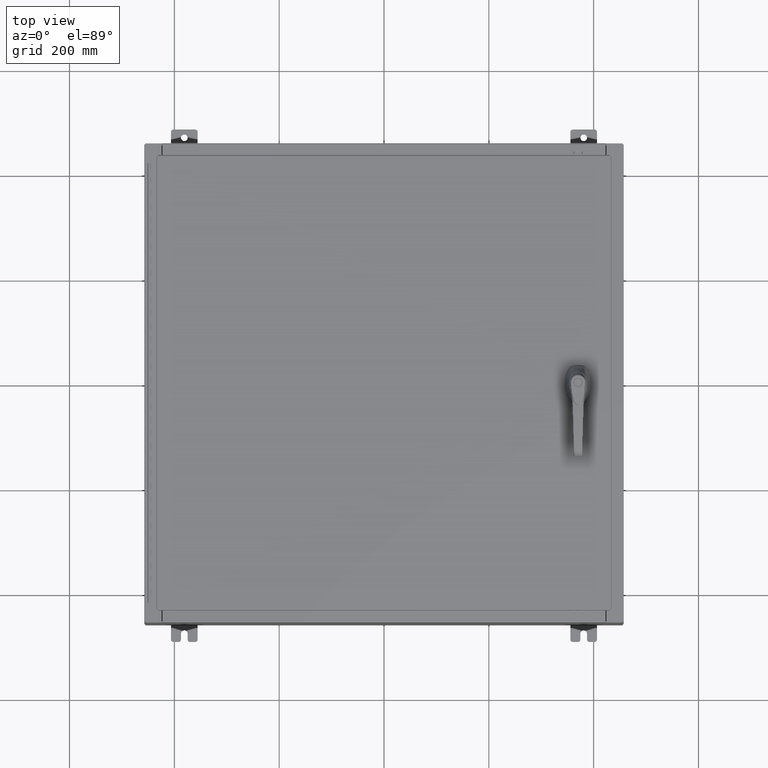
[diagram: clean part render]
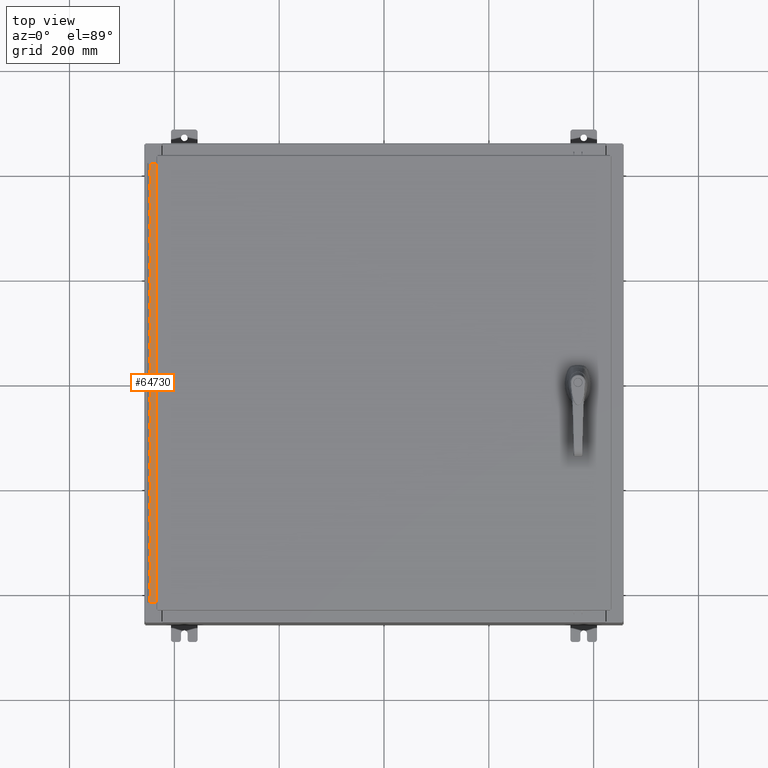
[diagram: same view with one face highlighted and labeled with its STEP entity id]
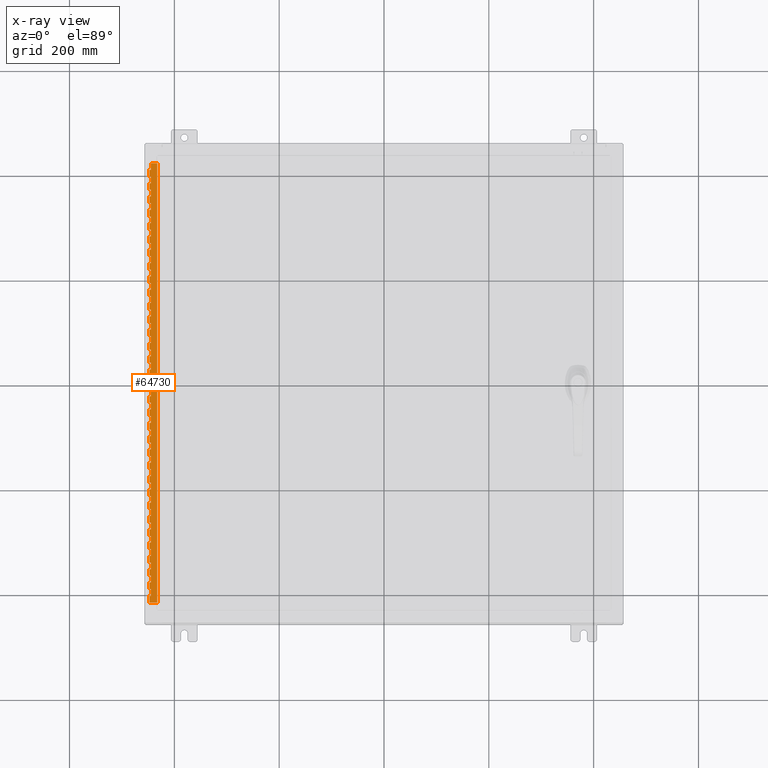
[diagram: x-ray of the same camera — body ghosted, the highlighted face saturated]
A machine part, top view. The second image highlights one B-rep face of the part: STEP entity #64730.
The next image is the same camera in x-ray: the body ghosted, the highlighted face saturated — about 0% of this face is hidden behind the body in this view.
In plain terms, the highlighted planar face has unit normal (-0, -0, 1).
Its self-contained STEP definition (entity closure, byte-faithful):
#3 = ORIENTED_EDGE ( 'NONE', *, *, #54762, .T. ) ;
#103 = CARTESIAN_POINT ( 'NONE',  ( -0.6869999999999973900, 0.8004999999999995500, -32.00000000000000000 ) ) ;
#130 = CARTESIAN_POINT ( 'NONE',  ( -0.6869999999999978300, 0.6754999999999996600, -33.00000000000000000 ) ) ;
#355 = CARTESIAN_POINT ( 'NONE',  ( -0.6869999999999978300, 0.6754999999999996600, -33.00000000000000000 ) ) ;
#525 = VERTEX_POINT ( 'NONE', #117146 ) ;
#683 = DIRECTION ( 'NONE',  ( 0.0000000000000000000, 0.0000000000000000000, 1.000000000000000000 ) ) ;
#758 = DIRECTION ( 'NONE',  ( 0.0000000000000000000, 0.0000000000000000000, 1.000000000000000000 ) ) ;
#987 = LINE ( 'NONE', #76471, #123512 ) ;
#1046 = LINE ( 'NONE', #33039, #32835 ) ;
#1321 = VECTOR ( 'NONE', #62955, 39.37007874015748100 ) ;
#1339 = EDGE_CURVE ( 'NONE', #12669, #89083, #114145, .T. ) ;
#1379 = LINE ( 'NONE', #80050, #7473 ) ;
#1655 = ORIENTED_EDGE ( 'NONE', *, *, #123216, .F. ) ;
#1763 = DIRECTION ( 'NONE',  ( 1.000000000000000000, -3.369016658928398200E-015, 0.0000000000000000000 ) ) ;
#1867 = CARTESIAN_POINT ( 'NONE',  ( -0.6869999999999982800, 0.5504999999999997700, -19.00000000000000000 ) ) ;
#1903 = ORIENTED_EDGE ( 'NONE', *, *, #77386, .F. ) ;
#1916 = LINE ( 'NONE', #76165, #79079 ) ;
#1966 = VECTOR ( 'NONE', #79378, 39.37007874015748100 ) ;
#1967 = CARTESIAN_POINT ( 'NONE',  ( -0.6869999999999982800, 0.5504999999999997700, -28.99999999999999600 ) ) ;
#2019 = DIRECTION ( 'NONE',  ( -3.389037039080723100E-015, -1.000000000000000000, 0.0000000000000000000 ) ) ;
#2118 = DIRECTION ( 'NONE',  ( 0.0000000000000000000, 0.0000000000000000000, 1.000000000000000000 ) ) ;
#2146 = VERTEX_POINT ( 'NONE', #112023 ) ;
#2187 = CARTESIAN_POINT ( 'NONE',  ( -0.6869999999999982800, 0.5504999999999997700, -7.499999999999999100 ) ) ;
#2335 = DIRECTION ( 'NONE',  ( 3.389037039080723100E-015, 1.000000000000000000, -0.0000000000000000000 ) ) ;
#2355 = CARTESIAN_POINT ( 'NONE',  ( -0.6870000000000022800, -0.6245000000000003900, 0.0000000000000000000 ) ) ;
#2371 = VERTEX_POINT ( 'NONE', #77314 ) ;
#2502 = EDGE_CURVE ( 'NONE', #113774, #18291, #109453, .T. ) ;
#2646 = VERTEX_POINT ( 'NONE', #61644 ) ;
#2723 = ORIENTED_EDGE ( 'NONE', *, *, #109761, .F. ) ;
#2818 = LINE ( 'NONE', #124147, #102661 ) ;
#2842 = EDGE_CURVE ( 'NONE', #55015, #29127, #39803, .T. ) ;
#2883 = EDGE_CURVE ( 'NONE', #40118, #76001, #116923, .T. ) ;
#2974 = VECTOR ( 'NONE', #81045, 39.37007874015748100 ) ;
#3080 = ORIENTED_EDGE ( 'NONE', *, *, #92057, .F. ) ;
#3416 = EDGE_CURVE ( 'NONE', #38864, #46408, #86581, .T. ) ;
#3553 = CARTESIAN_POINT ( 'NONE',  ( -0.6869999999999973900, 0.8004999999999995500, -18.50000000000000000 ) ) ;
#3685 = EDGE_CURVE ( 'NONE', #111669, #34989, #113800, .T. ) ;
#3726 = CARTESIAN_POINT ( 'NONE',  ( -0.6869999999999978300, 0.6754999999999996600, -16.00000000000000000 ) ) ;
#3757 = DIRECTION ( 'NONE',  ( 0.0000000000000000000, -0.0000000000000000000, -1.000000000000000000 ) ) ;
#3835 = ORIENTED_EDGE ( 'NONE', *, *, #35579, .F. ) ;
#3939 = VECTOR ( 'NONE', #40811, 39.37007874015748100 ) ;
#4747 = LINE ( 'NONE', #119271, #27362 ) ;
#4815 = ORIENTED_EDGE ( 'NONE', *, *, #72247, .F. ) ;
#4825 = CARTESIAN_POINT ( 'NONE',  ( -0.6869999999999978300, 0.6754999999999996600, -20.00000000000000000 ) ) ;
#4853 = CARTESIAN_POINT ( 'NONE',  ( -0.6869999999999982800, 0.5504999999999997700, -24.50000000000000000 ) ) ;
#5200 = ORIENTED_EDGE ( 'NONE', *, *, #107678, .F. ) ;
#5400 = LINE ( 'NONE', #21488, #102192 ) ;
#5431 = CARTESIAN_POINT ( 'NONE',  ( -0.6869999999999978300, 0.6754999999999996600, -23.00000000000000000 ) ) ;
#5457 = VECTOR ( 'NONE', #76284, 39.37007874015748100 ) ;
#5468 = VECTOR ( 'NONE', #71966, 39.37007874015748100 ) ;
#5519 = ORIENTED_EDGE ( 'NONE', *, *, #72167, .F. ) ;
#5620 = DIRECTION ( 'NONE',  ( 3.389037039080723100E-015, 1.000000000000000000, -0.0000000000000000000 ) ) ;
#5687 = EDGE_CURVE ( 'NONE', #40705, #69214, #98327, .T. ) ;
#5872 = CARTESIAN_POINT ( 'NONE',  ( -0.6869999999999982800, 0.5504999999999997700, -23.99999999999999600 ) ) ;
#5945 = ORIENTED_EDGE ( 'NONE', *, *, #92264, .T. ) ;
#5979 = EDGE_CURVE ( 'NONE', #59048, #89083, #77139, .T. ) ;
#6102 = DIRECTION ( 'NONE',  ( 3.389037039080723100E-015, 1.000000000000000000, -0.0000000000000000000 ) ) ;
#6153 = ORIENTED_EDGE ( 'NONE', *, *, #21067, .F. ) ;
#6162 = DIRECTION ( 'NONE',  ( -3.389037039080723100E-015, -1.000000000000000000, 0.0000000000000000000 ) ) ;
#6244 = VECTOR ( 'NONE', #80711, 39.37007874015748100 ) ;
#6296 = VECTOR ( 'NONE', #103520, 39.37007874015748100 ) ;
#6341 = DIRECTION ( 'NONE',  ( 0.0000000000000000000, -0.0000000000000000000, -1.000000000000000000 ) ) ;
#6535 = EDGE_CURVE ( 'NONE', #56065, #42460, #69502, .T. ) ;
#6679 = VERTEX_POINT ( 'NONE', #23116 ) ;
#6778 = DIRECTION ( 'NONE',  ( 3.389037039080723100E-015, 1.000000000000000000, -0.0000000000000000000 ) ) ;
#7013 = CARTESIAN_POINT ( 'NONE',  ( -0.6869999999999978300, 0.6754999999999996600, -33.00000000000000000 ) ) ;
#7180 = VERTEX_POINT ( 'NONE', #40440 ) ;
#7409 = VERTEX_POINT ( 'NONE', #42686 ) ;
#7432 = ORIENTED_EDGE ( 'NONE', *, *, #75648, .F. ) ;
#7473 = VECTOR ( 'NONE', #22096, 39.37007874015748100 ) ;
#7638 = CARTESIAN_POINT ( 'NONE',  ( -0.6869999999999973900, 0.8004999999999995500, -25.50000000000000400 ) ) ;
#8004 = DIRECTION ( 'NONE',  ( 0.0000000000000000000, 0.0000000000000000000, 1.000000000000000000 ) ) ;
#8030 = VERTEX_POINT ( 'NONE', #80603 ) ;
#8043 = LINE ( 'NONE', #69653, #1966 ) ;
#8250 = ORIENTED_EDGE ( 'NONE', *, *, #95412, .F. ) ;
#8605 = DIRECTION ( 'NONE',  ( 3.389037039080723100E-015, 1.000000000000000000, -0.0000000000000000000 ) ) ;
#8682 = ORIENTED_EDGE ( 'NONE', *, *, #59889, .F. ) ;
#8688 = CARTESIAN_POINT ( 'NONE',  ( -0.6869999999999973900, 0.8004999999999995500, -16.00000000000000000 ) ) ;
#8714 = VERTEX_POINT ( 'NONE', #120112 ) ;
#8744 = DIRECTION ( 'NONE',  ( 3.389037039080723100E-015, 1.000000000000000000, -0.0000000000000000000 ) ) ;
#8772 = EDGE_CURVE ( 'NONE', #76984, #102107, #94835, .T. ) ;
#8844 = CARTESIAN_POINT ( 'NONE',  ( -0.6869999999999982800, 0.5504999999999997700, -25.50000000000000400 ) ) ;
#8897 = ORIENTED_EDGE ( 'NONE', *, *, #29101, .T. ) ;
#8916 = DIRECTION ( 'NONE',  ( -3.389037039080723100E-015, -1.000000000000000000, 0.0000000000000000000 ) ) ;
#8945 = LINE ( 'NONE', #56270, #108823 ) ;
#9001 = DIRECTION ( 'NONE',  ( 0.0000000000000000000, 0.0000000000000000000, 1.000000000000000000 ) ) ;
#9057 = VECTOR ( 'NONE', #2019, 39.37007874015748100 ) ;
#9217 = DIRECTION ( 'NONE',  ( -3.389037039080723100E-015, -1.000000000000000000, 0.0000000000000000000 ) ) ;
#9253 = VECTOR ( 'NONE', #74657, 39.37007874015748100 ) ;
#9638 = ORIENTED_EDGE ( 'NONE', *, *, #46727, .F. ) ;
#9666 = LINE ( 'NONE', #87319, #32351 ) ;
#9750 = DIRECTION ( 'NONE',  ( -3.389037039080723100E-015, -1.000000000000000000, 0.0000000000000000000 ) ) ;
#9810 = DIRECTION ( 'NONE',  ( 3.389037039080723100E-015, 1.000000000000000000, -0.0000000000000000000 ) ) ;
#9830 = LINE ( 'NONE', #100570, #26423 ) ;
#9832 = VECTOR ( 'NONE', #70129, 39.37007874015748100 ) ;
#9900 = ORIENTED_EDGE ( 'NONE', *, *, #14376, .F. ) ;
#10055 = EDGE_CURVE ( 'NONE', #119854, #48598, #41756, .T. ) ;
#10351 = VERTEX_POINT ( 'NONE', #20004 ) ;
#10431 = EDGE_CURVE ( 'NONE', #38864, #42168, #43197, .T. ) ;
#10446 = CARTESIAN_POINT ( 'NONE',  ( -0.6869999999999978300, 0.6754999999999996600, -7.499999999999999100 ) ) ;
#10679 = CARTESIAN_POINT ( 'NONE',  ( -0.6869999999999982800, 0.5504999999999997700, -14.00000000000000000 ) ) ;
#10736 = CARTESIAN_POINT ( 'NONE',  ( -0.6869999999999978300, 0.6754999999999996600, -33.00000000000000000 ) ) ;
#10745 = ORIENTED_EDGE ( 'NONE', *, *, #57533, .F. ) ;
#10771 = VECTOR ( 'NONE', #5620, 39.37007874015748100 ) ;
#10869 = ORIENTED_EDGE ( 'NONE', *, *, #33424, .F. ) ;
#11182 = EDGE_CURVE ( 'NONE', #55728, #61438, #9830, .T. ) ;
#11193 = DIRECTION ( 'NONE',  ( 0.0000000000000000000, 0.0000000000000000000, 1.000000000000000000 ) ) ;
#11481 = CARTESIAN_POINT ( 'NONE',  ( -0.6869999999999973900, 0.8004999999999995500, -19.00000000000000000 ) ) ;
#11659 = CARTESIAN_POINT ( 'NONE',  ( -0.6869999999999973900, 0.8004999999999995500, -22.50000000000000000 ) ) ;
#12669 = VERTEX_POINT ( 'NONE', #82620 ) ;
#12854 = LINE ( 'NONE', #45033, #86933 ) ;
#12866 = EDGE_CURVE ( 'NONE', #84500, #102107, #75408, .T. ) ;
#13021 = VERTEX_POINT ( 'NONE', #109993 ) ;
#13164 = ORIENTED_EDGE ( 'NONE', *, *, #2842, .F. ) ;
#13179 = CARTESIAN_POINT ( 'NONE',  ( -0.6869999999999982800, 0.5504999999999997700, -14.49999999999999800 ) ) ;
#13302 = LINE ( 'NONE', #51554, #39017 ) ;
#13537 = VERTEX_POINT ( 'NONE', #5431 ) ;
#13636 = CARTESIAN_POINT ( 'NONE',  ( -0.6869999999999978300, 0.6754999999999996600, -17.50000000000000000 ) ) ;
#13641 = VERTEX_POINT ( 'NONE', #103894 ) ;
#13814 = EDGE_CURVE ( 'NONE', #72203, #7409, #60136, .T. ) ;
#13837 = VECTOR ( 'NONE', #15330, 39.37007874015748100 ) ;
#14042 = DIRECTION ( 'NONE',  ( -3.389037039080723100E-015, -1.000000000000000000, 0.0000000000000000000 ) ) ;
#14139 = VECTOR ( 'NONE', #77660, 39.37007874015748100 ) ;
#14165 = EDGE_CURVE ( 'NONE', #6679, #30947, #116054, .T. ) ;
#14195 = DIRECTION ( 'NONE',  ( 0.0000000000000000000, 0.0000000000000000000, 1.000000000000000000 ) ) ;
#14291 = ORIENTED_EDGE ( 'NONE', *, *, #44853, .F. ) ;
#14376 = EDGE_CURVE ( 'NONE', #70867, #50919, #1046, .T. ) ;
#14395 = CARTESIAN_POINT ( 'NONE',  ( -0.6869999999999973900, 0.8004999999999995500, -28.50000000000000000 ) ) ;
#14518 = CARTESIAN_POINT ( 'NONE',  ( -0.6869999999999982800, 0.5504999999999997700, -24.99999999999999600 ) ) ;
#14619 = VECTOR ( 'NONE', #122386, 39.37007874015748100 ) ;
#14903 = EDGE_CURVE ( 'NONE', #89937, #27805, #47887, .T. ) ;
#15208 = ORIENTED_EDGE ( 'NONE', *, *, #113254, .F. ) ;
#15304 = EDGE_CURVE ( 'NONE', #109428, #121624, #78094, .T. ) ;
#15315 = ORIENTED_EDGE ( 'NONE', *, *, #73964, .F. ) ;
#15330 = DIRECTION ( 'NONE',  ( 3.389037039080723100E-015, 1.000000000000000000, -0.0000000000000000000 ) ) ;
#16570 = VERTEX_POINT ( 'NONE', #20329 ) ;
#16750 = LINE ( 'NONE', #66665, #68200 ) ;
#16781 = DIRECTION ( 'NONE',  ( -3.389037039080723100E-015, -1.000000000000000000, 0.0000000000000000000 ) ) ;
#16840 = DIRECTION ( 'NONE',  ( 3.389037039080723100E-015, 1.000000000000000000, -0.0000000000000000000 ) ) ;
#17156 = DIRECTION ( 'NONE',  ( 3.389037039080723100E-015, 1.000000000000000000, -0.0000000000000000000 ) ) ;
#17192 = CARTESIAN_POINT ( 'NONE',  ( -0.6869999999999978300, 0.6754999999999996600, -2.000000000000000000 ) ) ;
#17203 = VECTOR ( 'NONE', #106753, 39.37007874015748100 ) ;
#17211 = EDGE_CURVE ( 'NONE', #34039, #111669, #33949, .T. ) ;
#17220 = ORIENTED_EDGE ( 'NONE', *, *, #32243, .F. ) ;
#17324 = DIRECTION ( 'NONE',  ( -3.389037039080723100E-015, -1.000000000000000000, 0.0000000000000000000 ) ) ;
#17369 = CARTESIAN_POINT ( 'NONE',  ( -0.6869999999999978300, 0.6754999999999996600, -2.999999999999999600 ) ) ;
#17390 = ORIENTED_EDGE ( 'NONE', *, *, #18363, .F. ) ;
#17595 = EDGE_CURVE ( 'NONE', #125449, #79052, #9666, .T. ) ;
#17616 = EDGE_CURVE ( 'NONE', #92786, #33060, #109550, .T. ) ;
#17682 = VECTOR ( 'NONE', #43628, 39.37007874015748100 ) ;
#18280 = CARTESIAN_POINT ( 'NONE',  ( -0.6869999999999982800, 0.5504999999999997700, -26.00000000000000000 ) ) ;
#18291 = VERTEX_POINT ( 'NONE', #38515 ) ;
#18363 = EDGE_CURVE ( 'NONE', #48598, #29777, #109436, .T. ) ;
#18549 = LINE ( 'NONE', #51903, #66966 ) ;
#18559 = ORIENTED_EDGE ( 'NONE', *, *, #23721, .F. ) ;
#18601 = VERTEX_POINT ( 'NONE', #67125 ) ;
#18621 = EDGE_CURVE ( 'NONE', #49504, #108577, #94195, .T. ) ;
#18738 = VECTOR ( 'NONE', #82001, 39.37007874015748100 ) ;
#18750 = VERTEX_POINT ( 'NONE', #78533 ) ;
#18816 = VECTOR ( 'NONE', #118005, 39.37007874015748100 ) ;
#18824 = ORIENTED_EDGE ( 'NONE', *, *, #48423, .F. ) ;
#18920 = CARTESIAN_POINT ( 'NONE',  ( -0.6869999999999978300, 0.6754999999999996600, -9.500000000000000000 ) ) ;
#18923 = CARTESIAN_POINT ( 'NONE',  ( -0.6869999999999982800, 0.5504999999999997700, -2.000000000000000000 ) ) ;
#19039 = VERTEX_POINT ( 'NONE', #75052 ) ;
#19085 = ORIENTED_EDGE ( 'NONE', *, *, #88821, .T. ) ;
#19446 = CARTESIAN_POINT ( 'NONE',  ( -0.6869999999999998300, 0.07549999999999991400, 0.0000000000000000000 ) ) ;
#19697 = DIRECTION ( 'NONE',  ( -3.389037039080723100E-015, -1.000000000000000000, 0.0000000000000000000 ) ) ;
#19796 = DIRECTION ( 'NONE',  ( 0.0000000000000000000, 0.0000000000000000000, 1.000000000000000000 ) ) ;
#19894 = EDGE_CURVE ( 'NONE', #18601, #30758, #89457, .T. ) ;
#19913 = VERTEX_POINT ( 'NONE', #32115 ) ;
#20004 = CARTESIAN_POINT ( 'NONE',  ( -0.6869999999999978300, 0.6754999999999996600, -26.50000000000000400 ) ) ;
#20224 = ORIENTED_EDGE ( 'NONE', *, *, #71434, .F. ) ;
#20281 = CARTESIAN_POINT ( 'NONE',  ( -0.6869999999999982800, 0.5504999999999997700, -20.50000000000000400 ) ) ;
#20288 = DIRECTION ( 'NONE',  ( 0.0000000000000000000, 0.0000000000000000000, 1.000000000000000000 ) ) ;
#20299 = EDGE_CURVE ( 'NONE', #95625, #16570, #39544, .T. ) ;
#20324 = EDGE_CURVE ( 'NONE', #92553, #72294, #113664, .T. ) ;
#20329 = CARTESIAN_POINT ( 'NONE',  ( -0.6869999999999978300, 0.6754999999999996600, -22.00000000000000000 ) ) ;
#20339 = PLANE ( 'NONE',  #61426 ) ;
#20410 = DIRECTION ( 'NONE',  ( 0.0000000000000000000, 0.0000000000000000000, 1.000000000000000000 ) ) ;
#20450 = ORIENTED_EDGE ( 'NONE', *, *, #27569, .F. ) ;
#20937 = CARTESIAN_POINT ( 'NONE',  ( -0.6869999999999982800, 0.5504999999999997700, -14.99999999999999800 ) ) ;
#21060 = LINE ( 'NONE', #72836, #95173 ) ;
#21067 = EDGE_CURVE ( 'NONE', #94641, #115923, #42458, .T. ) ;
#21131 = DIRECTION ( 'NONE',  ( 3.389037039080723100E-015, 1.000000000000000000, -0.0000000000000000000 ) ) ;
#21271 = VECTOR ( 'NONE', #72907, 39.37007874015748100 ) ;
#21388 = CARTESIAN_POINT ( 'NONE',  ( -0.6869999999999982800, 0.5504999999999997700, -3.500000000000000000 ) ) ;
#21437 = DIRECTION ( 'NONE',  ( -3.389037039080723100E-015, -1.000000000000000000, 0.0000000000000000000 ) ) ;
#21488 = CARTESIAN_POINT ( 'NONE',  ( -0.6869999999999973900, 0.8004999999999995500, -14.99999999999999800 ) ) ;
#21709 = CARTESIAN_POINT ( 'NONE',  ( -0.6869999999999982800, 0.5504999999999997700, -0.5000000000000000000 ) ) ;
#22071 = VERTEX_POINT ( 'NONE', #33596 ) ;
#22096 = DIRECTION ( 'NONE',  ( 3.389037039080723100E-015, 1.000000000000000000, -0.0000000000000000000 ) ) ;
#22232 = CARTESIAN_POINT ( 'NONE',  ( -0.6869999999999998300, 0.07549999999999991400, -33.00000000000000000 ) ) ;
#22364 = DIRECTION ( 'NONE',  ( 3.389037039080723100E-015, 1.000000000000000000, -0.0000000000000000000 ) ) ;
#22371 = ORIENTED_EDGE ( 'NONE', *, *, #34310, .F. ) ;
#22502 = ORIENTED_EDGE ( 'NONE', *, *, #68363, .F. ) ;
#22623 = EDGE_CURVE ( 'NONE', #62551, #120332, #53057, .T. ) ;
#22687 = VERTEX_POINT ( 'NONE', #99375 ) ;
#22749 = VERTEX_POINT ( 'NONE', #13179 ) ;
#22808 = CARTESIAN_POINT ( 'NONE',  ( -0.6869999999999982800, 0.5504999999999997700, -22.50000000000000000 ) ) ;
#22840 = CARTESIAN_POINT ( 'NONE',  ( -0.6869999999999982800, 0.5504999999999997700, -10.00000000000000000 ) ) ;
#23004 = EDGE_CURVE ( 'NONE', #54798, #94501, #987, .T. ) ;
#23116 = CARTESIAN_POINT ( 'NONE',  ( -0.6869999999999978300, 0.6754999999999996600, -15.50000000000000000 ) ) ;
#23272 = CARTESIAN_POINT ( 'NONE',  ( -0.6869999999999978300, 0.6754999999999996600, -33.00000000000000000 ) ) ;
#23403 = CARTESIAN_POINT ( 'NONE',  ( -0.6869999999999982800, 0.5504999999999997700, -20.00000000000000000 ) ) ;
#23615 = VERTEX_POINT ( 'NONE', #29412 ) ;
#23721 = EDGE_CURVE ( 'NONE', #96659, #42324, #29604, .T. ) ;
#23761 = ORIENTED_EDGE ( 'NONE', *, *, #20299, .F. ) ;
#23846 = CARTESIAN_POINT ( 'NONE',  ( -0.6869999999999978300, 0.6754999999999996600, -33.00000000000000000 ) ) ;
#24303 = VERTEX_POINT ( 'NONE', #59278 ) ;
#24374 = CARTESIAN_POINT ( 'NONE',  ( -0.6869999999999982800, 0.5504999999999997700, -7.000000000000000000 ) ) ;
#24505 = ORIENTED_EDGE ( 'NONE', *, *, #102473, .T. ) ;
#24605 = VECTOR ( 'NONE', #98788, 39.37007874015748100 ) ;
#24635 = EDGE_CURVE ( 'NONE', #120085, #64162, #46140, .T. ) ;
#25100 = LINE ( 'NONE', #47099, #73559 ) ;
#25427 = LINE ( 'NONE', #49374, #28444 ) ;
#25430 = VECTOR ( 'NONE', #14195, 39.37007874015748100 ) ;
#25480 = VERTEX_POINT ( 'NONE', #36220 ) ;
#25601 = CARTESIAN_POINT ( 'NONE',  ( -0.6869999999999982800, 0.5504999999999997700, -32.50000000000000000 ) ) ;
#25823 = LINE ( 'NONE', #70618, #74286 ) ;
#25843 = CARTESIAN_POINT ( 'NONE',  ( -0.6869999999999982800, 0.5504999999999997700, -19.50000000000000000 ) ) ;
#26036 = VECTOR ( 'NONE', #43968, 39.37007874015748100 ) ;
#26119 = ORIENTED_EDGE ( 'NONE', *, *, #119951, .T. ) ;
#26157 = EDGE_CURVE ( 'NONE', #115923, #49343, #74645, .T. ) ;
#26338 = CARTESIAN_POINT ( 'NONE',  ( -0.6869999999999978300, 0.6754999999999996600, -32.50000000000000000 ) ) ;
#26423 = VECTOR ( 'NONE', #52428, 39.37007874015748100 ) ;
#26460 = DIRECTION ( 'NONE',  ( 0.0000000000000000000, -0.0000000000000000000, -1.000000000000000000 ) ) ;
#26530 = EDGE_CURVE ( 'NONE', #79052, #78628, #8043, .T. ) ;
#26550 = EDGE_CURVE ( 'NONE', #78326, #13021, #101824, .T. ) ;
#26621 = VECTOR ( 'NONE', #8605, 39.37007874015748100 ) ;
#26677 = EDGE_CURVE ( 'NONE', #7180, #102657, #18549, .T. ) ;
#26791 = VECTOR ( 'NONE', #77481, 39.37007874015748100 ) ;
#26912 = EDGE_LOOP ( 'NONE', ( #55419, #88001, #71391, #63386, #52361, #50819, #5519, #102448, #61283, #98548, #8682, #36228, #100779, #17390, #30410, #33407, #70774, #111178, #35569, #70417, #115909, #17220, #34932, #125020, #104140, #20450, #5200, #43917, #68915, #13164, #53571, #20224, #34368, #3835, #36799, #48381, #72226, #66156, #88391, #50437, #107429, #8250, #78040, #18559, #50487, #23761, #14291, #104705, #42216, #117398, #56940, #80890, #118342, #40363, #15315, #36710, #8897, #60687, #33903, #124164, #26119, #30650, #120099, #40010, #42562, #99152, #37216, #108430, #72868, #2723, #54363, #104846, #42578, #45716, #47172, #42865, #85224, #36384, #18824, #111221, #28045, #115049, #66303, #15208, #24505, #36399, #10745, #37951, #30583, #1903, #107335, #9638, #76258, #115685, #4815, #60133, #67538, #63756, #45402, #72660, #3, #69797, #22502, #85534, #74571, #118463, #77729, #44004, #19085, #98954, #3080, #7432, #5945, #36167, #6153, #64767, #99012, #10869, #54843, #97224, #31702, #9900, #92341, #93666, #75331, #22371, #110446, #45327, #78231, #121603, #1655, #100025, #33600, #116282 ) ) ;
#27024 = CARTESIAN_POINT ( 'NONE',  ( -0.6869999999999982800, 0.5504999999999997700, -2.999999999999999600 ) ) ;
#27224 = EDGE_CURVE ( 'NONE', #112157, #103834, #36695, .T. ) ;
#27362 = VECTOR ( 'NONE', #61388, 39.37007874015748100 ) ;
#27414 = VERTEX_POINT ( 'NONE', #120776 ) ;
#27569 = EDGE_CURVE ( 'NONE', #56432, #30758, #38126, .T. ) ;
#27744 = LINE ( 'NONE', #104776, #124578 ) ;
#27789 = CARTESIAN_POINT ( 'NONE',  ( -0.6869999999999998300, 0.07549999999999991400, -33.00000000000000000 ) ) ;
#27805 = VERTEX_POINT ( 'NONE', #59377 ) ;
#27977 = DIRECTION ( 'NONE',  ( -3.389037039080723100E-015, -1.000000000000000000, 0.0000000000000000000 ) ) ;
#28045 = ORIENTED_EDGE ( 'NONE', *, *, #107248, .T. ) ;
#28059 = LINE ( 'NONE', #10736, #5457 ) ;
#28091 = DIRECTION ( 'NONE',  ( 3.389037039080723100E-015, 1.000000000000000000, -0.0000000000000000000 ) ) ;
#28444 = VECTOR ( 'NONE', #107292, 39.37007874015748100 ) ;
#28891 = VECTOR ( 'NONE', #16840, 39.37007874015748100 ) ;
#29101 = EDGE_CURVE ( 'NONE', #76679, #46044, #59097, .T. ) ;
#29125 = CARTESIAN_POINT ( 'NONE',  ( -0.6869999999999982800, 0.5504999999999997700, -17.50000000000000000 ) ) ;
#29127 = VERTEX_POINT ( 'NONE', #39670 ) ;
#29293 = CARTESIAN_POINT ( 'NONE',  ( -0.6869999999999982800, 0.5504999999999997700, -27.50000000000000000 ) ) ;
#29399 = LINE ( 'NONE', #107742, #83890 ) ;
#29412 = CARTESIAN_POINT ( 'NONE',  ( -0.6869999999999982800, 0.5504999999999997700, -21.00000000000000000 ) ) ;
#29546 = CARTESIAN_POINT ( 'NONE',  ( -0.6869999999999978300, 0.6754999999999996600, -14.00000000000000000 ) ) ;
#29604 = LINE ( 'NONE', #11659, #52346 ) ;
#29608 = EDGE_CURVE ( 'NONE', #18601, #90107, #99855, .T. ) ;
#29777 = VERTEX_POINT ( 'NONE', #56303 ) ;
#30231 = DIRECTION ( 'NONE',  ( 0.0000000000000000000, -0.0000000000000000000, -1.000000000000000000 ) ) ;
#30410 = ORIENTED_EDGE ( 'NONE', *, *, #10055, .F. ) ;
#30498 = CARTESIAN_POINT ( 'NONE',  ( -0.6869999999999982800, 0.5504999999999997700, -0.5000000000000000000 ) ) ;
#30583 = ORIENTED_EDGE ( 'NONE', *, *, #122791, .T. ) ;
#30650 = ORIENTED_EDGE ( 'NONE', *, *, #41406, .F. ) ;
#30758 = VERTEX_POINT ( 'NONE', #101344 ) ;
#30870 = CARTESIAN_POINT ( 'NONE',  ( -0.6869999999999978300, 0.6754999999999996600, -33.00000000000000000 ) ) ;
#30901 = LINE ( 'NONE', #67656, #82369 ) ;
#30947 = VERTEX_POINT ( 'NONE', #103433 ) ;
#31032 = LINE ( 'NONE', #100170, #79471 ) ;
#31129 = DIRECTION ( 'NONE',  ( 0.0000000000000000000, -0.0000000000000000000, -1.000000000000000000 ) ) ;
#31134 = LINE ( 'NONE', #23272, #5468 ) ;
#31507 = DIRECTION ( 'NONE',  ( 3.369016658928398200E-015, 1.000000000000000000, 0.0000000000000000000 ) ) ;
#31529 = EDGE_CURVE ( 'NONE', #83759, #59686, #86154, .T. ) ;
#31576 = CARTESIAN_POINT ( 'NONE',  ( -0.6869999999999978300, 0.6754999999999996600, -30.50000000000000400 ) ) ;
#31632 = EDGE_CURVE ( 'NONE', #113774, #34682, #51399, .T. ) ;
#31702 = ORIENTED_EDGE ( 'NONE', *, *, #120049, .T. ) ;
#31949 = LINE ( 'NONE', #122976, #6296 ) ;
#32115 = CARTESIAN_POINT ( 'NONE',  ( -0.6869999999999978300, 0.6754999999999996600, -18.50000000000000000 ) ) ;
#32243 = EDGE_CURVE ( 'NONE', #8030, #42168, #117828, .T. ) ;
#32351 = VECTOR ( 'NONE', #19697, 39.37007874015748100 ) ;
#32390 = LINE ( 'NONE', #30498, #92913 ) ;
#32835 = VECTOR ( 'NONE', #100664, 39.37007874015748100 ) ;
#33039 = CARTESIAN_POINT ( 'NONE',  ( -0.6869999999999973900, 0.8004999999999995500, -2.999999999999999600 ) ) ;
#33060 = VERTEX_POINT ( 'NONE', #78580 ) ;
#33116 = LINE ( 'NONE', #41445, #81529 ) ;
#33392 = VECTOR ( 'NONE', #124265, 39.37007874015748100 ) ;
#33407 = ORIENTED_EDGE ( 'NONE', *, *, #106648, .F. ) ;
#33424 = EDGE_CURVE ( 'NONE', #34989, #25480, #45099, .T. ) ;
#33596 = CARTESIAN_POINT ( 'NONE',  ( -0.6869999999999978300, 0.6754999999999996600, -11.00000000000000000 ) ) ;
#33600 = ORIENTED_EDGE ( 'NONE', *, *, #110311, .T. ) ;
#33740 = CARTESIAN_POINT ( 'NONE',  ( -0.6869999999999973900, 0.8004999999999995500, -2.000000000000000000 ) ) ;
#33903 = ORIENTED_EDGE ( 'NONE', *, *, #51785, .F. ) ;
#33924 = VECTOR ( 'NONE', #123285, 39.37007874015748100 ) ;
#33949 = LINE ( 'NONE', #35032, #36993 ) ;
#34039 = VERTEX_POINT ( 'NONE', #37571 ) ;
#34124 = VECTOR ( 'NONE', #54559, 39.37007874015748100 ) ;
#34286 = CARTESIAN_POINT ( 'NONE',  ( -0.6869999999999973900, 0.8004999999999995500, -13.50000000000000000 ) ) ;
#34310 = EDGE_CURVE ( 'NONE', #111138, #44235, #99398, .T. ) ;
#34368 = ORIENTED_EDGE ( 'NONE', *, *, #113378, .T. ) ;
#34444 = VECTOR ( 'NONE', #99130, 39.37007874015748100 ) ;
#34562 = EDGE_CURVE ( 'NONE', #34682, #111138, #87252, .T. ) ;
#34682 = VERTEX_POINT ( 'NONE', #64681 ) ;
#34835 = CARTESIAN_POINT ( 'NONE',  ( -0.6869999999999973900, 0.8004999999999995500, -24.99999999999999600 ) ) ;
#34869 = EDGE_CURVE ( 'NONE', #35313, #94641, #60511, .T. ) ;
#34932 = ORIENTED_EDGE ( 'NONE', *, *, #105647, .F. ) ;
#34946 = CARTESIAN_POINT ( 'NONE',  ( -0.6869999999999973900, 0.8004999999999995500, -27.50000000000000000 ) ) ;
#34978 = DIRECTION ( 'NONE',  ( 3.389037039080723100E-015, 1.000000000000000000, -0.0000000000000000000 ) ) ;
#34989 = VERTEX_POINT ( 'NONE', #93230 ) ;
#35032 = CARTESIAN_POINT ( 'NONE',  ( -0.6869999999999973900, 0.8004999999999995500, -3.500000000000000000 ) ) ;
#35313 = VERTEX_POINT ( 'NONE', #42472 ) ;
#35427 = VECTOR ( 'NONE', #683, 39.37007874015748100 ) ;
#35443 = EDGE_CURVE ( 'NONE', #46860, #92015, #55912, .T. ) ;
#35569 = ORIENTED_EDGE ( 'NONE', *, *, #100460, .F. ) ;
#35579 = EDGE_CURVE ( 'NONE', #82422, #22687, #117868, .T. ) ;
#36167 = ORIENTED_EDGE ( 'NONE', *, *, #26157, .F. ) ;
#36186 = DIRECTION ( 'NONE',  ( 0.0000000000000000000, 0.0000000000000000000, 1.000000000000000000 ) ) ;
#36220 = CARTESIAN_POINT ( 'NONE',  ( -0.6869999999999978300, 0.6754999999999996600, -4.000000000000000000 ) ) ;
#36228 = ORIENTED_EDGE ( 'NONE', *, *, #69047, .F. ) ;
#36384 = ORIENTED_EDGE ( 'NONE', *, *, #5979, .F. ) ;
#36399 = ORIENTED_EDGE ( 'NONE', *, *, #20324, .F. ) ;
#36695 = LINE ( 'NONE', #59957, #59342 ) ;
#36709 = VERTEX_POINT ( 'NONE', #31576 ) ;
#36710 = ORIENTED_EDGE ( 'NONE', *, *, #116374, .F. ) ;
#36799 = ORIENTED_EDGE ( 'NONE', *, *, #112074, .F. ) ;
#36936 = DIRECTION ( 'NONE',  ( 0.0000000000000000000, -0.0000000000000000000, -1.000000000000000000 ) ) ;
#36993 = VECTOR ( 'NONE', #73485, 39.37007874015748100 ) ;
#37216 = ORIENTED_EDGE ( 'NONE', *, *, #89283, .F. ) ;
#37571 = CARTESIAN_POINT ( 'NONE',  ( -0.6869999999999978300, 0.6754999999999996600, -3.500000000000000000 ) ) ;
#37826 = LINE ( 'NONE', #63824, #60517 ) ;
#37951 = ORIENTED_EDGE ( 'NONE', *, *, #18621, .F. ) ;
#37980 = LINE ( 'NONE', #42270, #86357 ) ;
#38126 = LINE ( 'NONE', #56878, #63863 ) ;
#38342 = VECTOR ( 'NONE', #54285, 39.37007874015748100 ) ;
#38515 = CARTESIAN_POINT ( 'NONE',  ( -0.6869999999999978300, 0.6754999999999996600, -1.000000000000000000 ) ) ;
#38864 = VERTEX_POINT ( 'NONE', #122349 ) ;
#39007 = CARTESIAN_POINT ( 'NONE',  ( -0.6869999999999978300, 0.6754999999999996600, -14.99999999999999800 ) ) ;
#39017 = VECTOR ( 'NONE', #3757, 39.37007874015748100 ) ;
#39079 = EDGE_CURVE ( 'NONE', #125449, #120332, #31134, .T. ) ;
#39544 = LINE ( 'NONE', #63543, #13837 ) ;
#39584 = LINE ( 'NONE', #102775, #87917 ) ;
#39670 = CARTESIAN_POINT ( 'NONE',  ( -0.6869999999999978300, 0.6754999999999996600, -26.00000000000000000 ) ) ;
#39803 = LINE ( 'NONE', #102593, #91190 ) ;
#40010 = ORIENTED_EDGE ( 'NONE', *, *, #17595, .F. ) ;
#40118 = VERTEX_POINT ( 'NONE', #62396 ) ;
#40214 = CARTESIAN_POINT ( 'NONE',  ( -0.6869999999999973900, 0.8004999999999995500, -12.99999999999999800 ) ) ;
#40363 = ORIENTED_EDGE ( 'NONE', *, *, #70302, .F. ) ;
#40375 = EDGE_CURVE ( 'NONE', #12669, #22749, #12854, .T. ) ;
#40440 = CARTESIAN_POINT ( 'NONE',  ( -0.6869999999999982800, 0.5504999999999997700, -8.000000000000000000 ) ) ;
#40523 = CARTESIAN_POINT ( 'NONE',  ( -0.6869999999999982800, 0.5504999999999997700, -26.50000000000000400 ) ) ;
#40636 = DIRECTION ( 'NONE',  ( 0.0000000000000000000, 0.0000000000000000000, 1.000000000000000000 ) ) ;
#40655 = VERTEX_POINT ( 'NONE', #22840 ) ;
#40705 = VERTEX_POINT ( 'NONE', #110408 ) ;
#40735 = VECTOR ( 'NONE', #54242, 39.37007874015748100 ) ;
#40811 = DIRECTION ( 'NONE',  ( 0.0000000000000000000, 0.0000000000000000000, 1.000000000000000000 ) ) ;
#40997 = LINE ( 'NONE', #104531, #66667 ) ;
#41276 = VECTOR ( 'NONE', #11193, 39.37007874015748100 ) ;
#41406 = EDGE_CURVE ( 'NONE', #78628, #2646, #120062, .T. ) ;
#41445 = CARTESIAN_POINT ( 'NONE',  ( -0.6869999999999982800, 0.5504999999999997700, -2.500000000000000000 ) ) ;
#41756 = LINE ( 'NONE', #93192, #87067 ) ;
#41823 = VERTEX_POINT ( 'NONE', #4825 ) ;
#41924 = EDGE_CURVE ( 'NONE', #23615, #45601, #115477, .T. ) ;
#42168 = VERTEX_POINT ( 'NONE', #106605 ) ;
#42216 = ORIENTED_EDGE ( 'NONE', *, *, #119307, .T. ) ;
#42270 = CARTESIAN_POINT ( 'NONE',  ( -0.6869999999999982800, 0.5504999999999997700, -30.50000000000000400 ) ) ;
#42324 = VERTEX_POINT ( 'NONE', #22808 ) ;
#42458 = LINE ( 'NONE', #64217, #65127 ) ;
#42460 = VERTEX_POINT ( 'NONE', #111630 ) ;
#42472 = CARTESIAN_POINT ( 'NONE',  ( -0.6869999999999978300, 0.6754999999999996600, -4.500000000000000000 ) ) ;
#42562 = ORIENTED_EDGE ( 'NONE', *, *, #39079, .T. ) ;
#42578 = ORIENTED_EDGE ( 'NONE', *, *, #97255, .T. ) ;
#42674 = DIRECTION ( 'NONE',  ( 0.0000000000000000000, -0.0000000000000000000, -1.000000000000000000 ) ) ;
#42686 = CARTESIAN_POINT ( 'NONE',  ( -0.6869999999999982800, 0.5504999999999997700, -7.499999999999999100 ) ) ;
#42814 = CARTESIAN_POINT ( 'NONE',  ( -0.6869999999999982800, 0.5504999999999997700, -28.50000000000000000 ) ) ;
#42865 = ORIENTED_EDGE ( 'NONE', *, *, #40375, .F. ) ;
#42968 = CARTESIAN_POINT ( 'NONE',  ( -0.6869999999999978300, 0.6754999999999996600, -33.00000000000000000 ) ) ;
#43197 = LINE ( 'NONE', #107539, #117279 ) ;
#43391 = CARTESIAN_POINT ( 'NONE',  ( -0.6869999999999978300, 0.6754999999999996600, -22.50000000000000000 ) ) ;
#43489 = CARTESIAN_POINT ( 'NONE',  ( -0.6869999999999982800, 0.5504999999999997700, -15.50000000000000000 ) ) ;
#43564 = LINE ( 'NONE', #105071, #120693 ) ;
#43589 = VERTEX_POINT ( 'NONE', #86361 ) ;
#43628 = DIRECTION ( 'NONE',  ( 0.0000000000000000000, 0.0000000000000000000, 1.000000000000000000 ) ) ;
#43730 = CARTESIAN_POINT ( 'NONE',  ( -0.6869999999999982800, 0.5504999999999997700, -31.00000000000000000 ) ) ;
#43917 = ORIENTED_EDGE ( 'NONE', *, *, #62495, .F. ) ;
#43968 = DIRECTION ( 'NONE',  ( -3.389037039080723100E-015, -1.000000000000000000, 0.0000000000000000000 ) ) ;
#44004 = ORIENTED_EDGE ( 'NONE', *, *, #120602, .F. ) ;
#44198 = CARTESIAN_POINT ( 'NONE',  ( -0.6869999999999978300, 0.6754999999999996600, -33.00000000000000000 ) ) ;
#44235 = VERTEX_POINT ( 'NONE', #17192 ) ;
#44288 = CARTESIAN_POINT ( 'NONE',  ( -0.6869999999999982800, 0.5504999999999997700, -13.50000000000000000 ) ) ;
#44360 = DIRECTION ( 'NONE',  ( 0.0000000000000000000, 0.0000000000000000000, 1.000000000000000000 ) ) ;
#44853 = EDGE_CURVE ( 'NONE', #61438, #95625, #59067, .T. ) ;
#44905 = EDGE_CURVE ( 'NONE', #102147, #55015, #107493, .T. ) ;
#44921 = VECTOR ( 'NONE', #61935, 39.37007874015748100 ) ;
#45033 = CARTESIAN_POINT ( 'NONE',  ( -0.6869999999999973900, 0.8004999999999995500, -14.49999999999999800 ) ) ;
#45039 = CARTESIAN_POINT ( 'NONE',  ( -0.6869999999999973900, 0.8004999999999995500, -4.000000000000000000 ) ) ;
#45099 = LINE ( 'NONE', #45039, #122229 ) ;
#45252 = VERTEX_POINT ( 'NONE', #3726 ) ;
#45327 = ORIENTED_EDGE ( 'NONE', *, *, #31632, .F. ) ;
#45402 = ORIENTED_EDGE ( 'NONE', *, *, #118163, .F. ) ;
#45601 = VERTEX_POINT ( 'NONE', #94504 ) ;
#45716 = ORIENTED_EDGE ( 'NONE', *, *, #49479, .F. ) ;
#45759 = CARTESIAN_POINT ( 'NONE',  ( -0.6869999999999982800, 0.5504999999999997700, -14.49999999999999800 ) ) ;
#45789 = VECTOR ( 'NONE', #53932, 39.37007874015748100 ) ;
#46044 = VERTEX_POINT ( 'NONE', #84152 ) ;
#46140 = LINE ( 'NONE', #81668, #74876 ) ;
#46283 = LINE ( 'NONE', #46957, #117311 ) ;
#46288 = CARTESIAN_POINT ( 'NONE',  ( -0.6869999999999978300, 0.6754999999999996600, -0.5000000000000000000 ) ) ;
#46398 = VECTOR ( 'NONE', #72772, 39.37007874015748100 ) ;
#46408 = VERTEX_POINT ( 'NONE', #66616 ) ;
#46486 = CARTESIAN_POINT ( 'NONE',  ( -0.6869999999999978300, 0.6754999999999996600, -33.00000000000000000 ) ) ;
#46696 = CARTESIAN_POINT ( 'NONE',  ( -0.6869999999999982800, 0.5504999999999997700, -29.99999999999999600 ) ) ;
#46727 = EDGE_CURVE ( 'NONE', #92786, #525, #122047, .T. ) ;
#46860 = VERTEX_POINT ( 'NONE', #43730 ) ;
#46950 = VECTOR ( 'NONE', #16781, 39.37007874015748100 ) ;
#46957 = CARTESIAN_POINT ( 'NONE',  ( -0.6869999999999973900, 0.8004999999999995500, -9.500000000000000000 ) ) ;
#46958 = VECTOR ( 'NONE', #69823, 39.37007874015748100 ) ;
#47096 = LINE ( 'NONE', #124746, #121207 ) ;
#47099 = CARTESIAN_POINT ( 'NONE',  ( -0.6869999999999973900, 0.8004999999999995500, -7.000000000000000000 ) ) ;
#47172 = ORIENTED_EDGE ( 'NONE', *, *, #59349, .F. ) ;
#47219 = VECTOR ( 'NONE', #36186, 39.37007874015748100 ) ;
#47319 = VECTOR ( 'NONE', #77586, 39.37007874015748100 ) ;
#47656 = CARTESIAN_POINT ( 'NONE',  ( -0.6869999999999978300, 0.6754999999999996600, -6.499999999999999100 ) ) ;
#47887 = LINE ( 'NONE', #69511, #67515 ) ;
#48151 = CARTESIAN_POINT ( 'NONE',  ( -0.6869999999999978300, 0.6754999999999996600, -33.00000000000000000 ) ) ;
#48338 = LINE ( 'NONE', #93916, #93661 ) ;
#48381 = ORIENTED_EDGE ( 'NONE', *, *, #24635, .F. ) ;
#48423 = EDGE_CURVE ( 'NONE', #68903, #59048, #97765, .T. ) ;
#48598 = VERTEX_POINT ( 'NONE', #46696 ) ;
#48631 = EDGE_CURVE ( 'NONE', #56094, #18750, #25100, .T. ) ;
#48647 = VERTEX_POINT ( 'NONE', #66528 ) ;
#48723 = VECTOR ( 'NONE', #40636, 39.37007874015748100 ) ;
#48894 = CARTESIAN_POINT ( 'NONE',  ( -0.6869999999999978300, 0.6754999999999996600, -33.00000000000000000 ) ) ;
#48929 = DIRECTION ( 'NONE',  ( 0.0000000000000000000, -0.0000000000000000000, -1.000000000000000000 ) ) ;
#49187 = EDGE_CURVE ( 'NONE', #114359, #13641, #46283, .T. ) ;
#49343 = VERTEX_POINT ( 'NONE', #115420 ) ;
#49374 = CARTESIAN_POINT ( 'NONE',  ( -0.6869999999999978300, 0.6754999999999996600, -33.00000000000000000 ) ) ;
#49418 = LINE ( 'NONE', #34286, #46398 ) ;
#49479 = EDGE_CURVE ( 'NONE', #124659, #123103, #5400, .T. ) ;
#49504 = VERTEX_POINT ( 'NONE', #50697 ) ;
#49672 = VERTEX_POINT ( 'NONE', #100550 ) ;
#50294 = EDGE_CURVE ( 'NONE', #56065, #45252, #59711, .T. ) ;
#50437 = ORIENTED_EDGE ( 'NONE', *, *, #23004, .F. ) ;
#50487 = ORIENTED_EDGE ( 'NONE', *, *, #116618, .T. ) ;
#50680 = VECTOR ( 'NONE', #17324, 39.37007874015748100 ) ;
#50697 = CARTESIAN_POINT ( 'NONE',  ( -0.6869999999999978300, 0.6754999999999996600, -11.50000000000000000 ) ) ;
#50819 = ORIENTED_EDGE ( 'NONE', *, *, #12866, .F. ) ;
#50919 = VERTEX_POINT ( 'NONE', #17369 ) ;
#51029 = DIRECTION ( 'NONE',  ( 0.0000000000000000000, 0.0000000000000000000, 1.000000000000000000 ) ) ;
#51147 = DIRECTION ( 'NONE',  ( 0.0000000000000000000, -0.0000000000000000000, -1.000000000000000000 ) ) ;
#51399 = LINE ( 'NONE', #102135, #2974 ) ;
#51554 = CARTESIAN_POINT ( 'NONE',  ( -0.6869999999999982800, 0.5504999999999997700, -11.50000000000000000 ) ) ;
#51785 = EDGE_CURVE ( 'NONE', #117472, #94205, #88197, .T. ) ;
#51879 = DIRECTION ( 'NONE',  ( 0.0000000000000000000, 0.0000000000000000000, 1.000000000000000000 ) ) ;
#51903 = CARTESIAN_POINT ( 'NONE',  ( -0.6869999999999973900, 0.8004999999999995500, -8.000000000000000000 ) ) ;
#52188 = CARTESIAN_POINT ( 'NONE',  ( -0.6869999999999982800, 0.5504999999999997700, -5.500000000000000000 ) ) ;
#52224 = CARTESIAN_POINT ( 'NONE',  ( -0.6869999999999973900, 0.8004999999999995500, -10.50000000000000000 ) ) ;
#52346 = VECTOR ( 'NONE', #98697, 39.37007874015748100 ) ;
#52361 = ORIENTED_EDGE ( 'NONE', *, *, #8772, .T. ) ;
#52420 = CARTESIAN_POINT ( 'NONE',  ( -0.6869999999999982800, 0.5504999999999997700, -12.49999999999999800 ) ) ;
#52428 = DIRECTION ( 'NONE',  ( -3.389037039080723100E-015, -1.000000000000000000, 0.0000000000000000000 ) ) ;
#52701 = VECTOR ( 'NONE', #113163, 39.37007874015748100 ) ;
#52764 = CARTESIAN_POINT ( 'NONE',  ( -0.6869999999999982800, 0.5504999999999997700, -18.50000000000000000 ) ) ;
#53043 = CARTESIAN_POINT ( 'NONE',  ( -0.6869999999999982800, 0.5504999999999997700, -29.50000000000000000 ) ) ;
#53057 = LINE ( 'NONE', #79548, #46958 ) ;
#53403 = VERTEX_POINT ( 'NONE', #63766 ) ;
#53571 = ORIENTED_EDGE ( 'NONE', *, *, #44905, .F. ) ;
#53632 = VECTOR ( 'NONE', #78496, 39.37007874015748100 ) ;
#53932 = DIRECTION ( 'NONE',  ( 0.0000000000000000000, 0.0000000000000000000, 1.000000000000000000 ) ) ;
#54228 = EDGE_CURVE ( 'NONE', #30947, #2146, #90878, .T. ) ;
#54242 = DIRECTION ( 'NONE',  ( 3.389037039080723100E-015, 1.000000000000000000, -0.0000000000000000000 ) ) ;
#54285 = DIRECTION ( 'NONE',  ( 3.389037039080723100E-015, 1.000000000000000000, -0.0000000000000000000 ) ) ;
#54363 = ORIENTED_EDGE ( 'NONE', *, *, #54228, .F. ) ;
#54559 = DIRECTION ( 'NONE',  ( 0.0000000000000000000, -0.0000000000000000000, -1.000000000000000000 ) ) ;
#54762 = EDGE_CURVE ( 'NONE', #8714, #102657, #63642, .T. ) ;
#54798 = VERTEX_POINT ( 'NONE', #82650 ) ;
#54802 = DIRECTION ( 'NONE',  ( 0.0000000000000000000, -0.0000000000000000000, -1.000000000000000000 ) ) ;
#54824 = CARTESIAN_POINT ( 'NONE',  ( -0.6869999999999978300, 0.6754999999999996600, -33.00000000000000000 ) ) ;
#54843 = ORIENTED_EDGE ( 'NONE', *, *, #3685, .F. ) ;
#55015 = VERTEX_POINT ( 'NONE', #18280 ) ;
#55107 = DIRECTION ( 'NONE',  ( 0.0000000000000000000, 0.0000000000000000000, 1.000000000000000000 ) ) ;
#55419 = ORIENTED_EDGE ( 'NONE', *, *, #31529, .F. ) ;
#55471 = DIRECTION ( 'NONE',  ( 0.0000000000000000000, -0.0000000000000000000, -1.000000000000000000 ) ) ;
#55589 = VECTOR ( 'NONE', #71221, 39.37007874015748100 ) ;
#55664 = CARTESIAN_POINT ( 'NONE',  ( -0.6869999999999973900, 0.8004999999999995500, -30.50000000000000400 ) ) ;
#55672 = VECTOR ( 'NONE', #61004, 39.37007874015748100 ) ;
#55728 = VERTEX_POINT ( 'NONE', #125097 ) ;
#55912 = LINE ( 'NONE', #81778, #98188 ) ;
#56047 = VECTOR ( 'NONE', #76494, 39.37007874015748100 ) ;
#56065 = VERTEX_POINT ( 'NONE', #110702 ) ;
#56082 = VECTOR ( 'NONE', #758, 39.37007874015748100 ) ;
#56094 = VERTEX_POINT ( 'NONE', #24374 ) ;
#56270 = CARTESIAN_POINT ( 'NONE',  ( -0.6869999999999973900, 0.8004999999999995500, -29.50000000000000000 ) ) ;
#56303 = CARTESIAN_POINT ( 'NONE',  ( -0.6869999999999978300, 0.6754999999999996600, -29.99999999999999600 ) ) ;
#56432 = VERTEX_POINT ( 'NONE', #69601 ) ;
#56566 = DIRECTION ( 'NONE',  ( 0.0000000000000000000, -0.0000000000000000000, -1.000000000000000000 ) ) ;
#56606 = LINE ( 'NONE', #59042, #53632 ) ;
#56878 = CARTESIAN_POINT ( 'NONE',  ( -0.6869999999999973900, 0.8004999999999995500, -27.00000000000000000 ) ) ;
#56940 = ORIENTED_EDGE ( 'NONE', *, *, #104339, .F. ) ;
#57187 = CARTESIAN_POINT ( 'NONE',  ( -0.6869999999999973900, 0.8004999999999995500, -15.50000000000000000 ) ) ;
#57398 = VECTOR ( 'NONE', #61904, 39.37007874015748100 ) ;
#57420 = DIRECTION ( 'NONE',  ( -3.389037039080723100E-015, -1.000000000000000000, 0.0000000000000000000 ) ) ;
#57533 = EDGE_CURVE ( 'NONE', #108577, #92553, #13302, .T. ) ;
#57624 = VECTOR ( 'NONE', #20288, 39.37007874015748100 ) ;
#57694 = VECTOR ( 'NONE', #2118, 39.37007874015748100 ) ;
#57742 = VERTEX_POINT ( 'NONE', #5872 ) ;
#57947 = VECTOR ( 'NONE', #97206, 39.37007874015748100 ) ;
#57979 = VECTOR ( 'NONE', #119462, 39.37007874015748100 ) ;
#58165 = CARTESIAN_POINT ( 'NONE',  ( -0.6869999999999982800, 0.5504999999999997700, -17.00000000000000000 ) ) ;
#58296 = CARTESIAN_POINT ( 'NONE',  ( -0.6869999999999978300, 0.6754999999999996600, -9.000000000000000000 ) ) ;
#58761 = CARTESIAN_POINT ( 'NONE',  ( -0.6869999999999973900, 0.8004999999999995500, -29.99999999999999600 ) ) ;
#59042 = CARTESIAN_POINT ( 'NONE',  ( -0.6869999999999982800, 0.5504999999999997700, -9.500000000000000000 ) ) ;
#59048 = VERTEX_POINT ( 'NONE', #10679 ) ;
#59067 = LINE ( 'NONE', #61260, #33392 ) ;
#59097 = LINE ( 'NONE', #355, #56082 ) ;
#59278 = CARTESIAN_POINT ( 'NONE',  ( -0.6869999999999978300, 0.6754999999999996600, -23.99999999999999600 ) ) ;
#59342 = VECTOR ( 'NONE', #79403, 39.37007874015748100 ) ;
#59349 = EDGE_CURVE ( 'NONE', #22749, #124659, #100079, .T. ) ;
#59377 = CARTESIAN_POINT ( 'NONE',  ( -0.6869999999999978300, 0.6754999999999996600, -6.000000000000000900 ) ) ;
#59407 = VECTOR ( 'NONE', #9217, 39.37007874015748100 ) ;
#59645 = LINE ( 'NONE', #97063, #82365 ) ;
#59686 = VERTEX_POINT ( 'NONE', #19446 ) ;
#59711 = LINE ( 'NONE', #42968, #82427 ) ;
#59801 = LINE ( 'NONE', #122157, #34124 ) ;
#59889 = EDGE_CURVE ( 'NONE', #88961, #46860, #37980, .T. ) ;
#59957 = CARTESIAN_POINT ( 'NONE',  ( -0.6869999999999973900, 0.8004999999999995500, -20.50000000000000400 ) ) ;
#60133 = ORIENTED_EDGE ( 'NONE', *, *, #49187, .F. ) ;
#60136 = LINE ( 'NONE', #70852, #34444 ) ;
#60176 = EDGE_CURVE ( 'NONE', #57742, #24303, #16750, .T. ) ;
#60272 = CARTESIAN_POINT ( 'NONE',  ( -0.6869999999999973900, 0.8004999999999995500, -14.00000000000000000 ) ) ;
#60401 = CARTESIAN_POINT ( 'NONE',  ( -0.6869999999999973900, 0.8004999999999995500, -32.50000000000000000 ) ) ;
#60511 = LINE ( 'NONE', #108572, #9057 ) ;
#60517 = VECTOR ( 'NONE', #6341, 39.37007874015748100 ) ;
#60597 = CARTESIAN_POINT ( 'NONE',  ( -0.6869999999999982800, 0.5504999999999997700, -5.000000000000000000 ) ) ;
#60687 = ORIENTED_EDGE ( 'NONE', *, *, #123223, .F. ) ;
#60699 = LINE ( 'NONE', #54824, #9253 ) ;
#60701 = VERTEX_POINT ( 'NONE', #1967 ) ;
#60886 = CARTESIAN_POINT ( 'NONE',  ( -0.6869999999999978300, 0.6754999999999996600, -33.00000000000000000 ) ) ;
#61004 = DIRECTION ( 'NONE',  ( 0.0000000000000000000, -0.0000000000000000000, -1.000000000000000000 ) ) ;
#61139 = VECTOR ( 'NONE', #44360, 39.37007874015748100 ) ;
#61260 = CARTESIAN_POINT ( 'NONE',  ( -0.6869999999999982800, 0.5504999999999997700, -21.50000000000000400 ) ) ;
#61283 = ORIENTED_EDGE ( 'NONE', *, *, #93484, .T. ) ;
#61388 = DIRECTION ( 'NONE',  ( -3.389037039080723100E-015, -1.000000000000000000, 0.0000000000000000000 ) ) ;
#61426 = AXIS2_PLACEMENT_3D ( 'NONE', #98105, #1763, #69400 ) ;
#61433 = CARTESIAN_POINT ( 'NONE',  ( -0.6869999999999978300, 0.6754999999999996600, -8.000000000000000000 ) ) ;
#61438 = VERTEX_POINT ( 'NONE', #91781 ) ;
#61465 = CARTESIAN_POINT ( 'NONE',  ( -0.6869999999999978300, 0.6754999999999996600, -31.00000000000000000 ) ) ;
#61594 = CARTESIAN_POINT ( 'NONE',  ( -0.6869999999999978300, 0.6754999999999996600, -32.00000000000000000 ) ) ;
#61613 = DIRECTION ( 'NONE',  ( 3.389037039080723100E-015, 1.000000000000000000, -0.0000000000000000000 ) ) ;
#61644 = CARTESIAN_POINT ( 'NONE',  ( -0.6869999999999978300, 0.6754999999999996600, -17.99999999999999600 ) ) ;
#61874 = CARTESIAN_POINT ( 'NONE',  ( -0.6869999999999982800, 0.5504999999999997700, -32.00000000000000000 ) ) ;
#61904 = DIRECTION ( 'NONE',  ( 0.0000000000000000000, -0.0000000000000000000, -1.000000000000000000 ) ) ;
#61935 = DIRECTION ( 'NONE',  ( -3.389037039080723100E-015, -1.000000000000000000, 0.0000000000000000000 ) ) ;
#62192 = VECTOR ( 'NONE', #111139, 39.37007874015748100 ) ;
#62381 = VECTOR ( 'NONE', #31129, 39.37007874015748100 ) ;
#62396 = CARTESIAN_POINT ( 'NONE',  ( -0.6869999999999982800, 0.5504999999999997700, -32.50000000000000000 ) ) ;
#62495 = EDGE_CURVE ( 'NONE', #10351, #65339, #2818, .T. ) ;
#62551 = VERTEX_POINT ( 'NONE', #58165 ) ;
#62736 = CARTESIAN_POINT ( 'NONE',  ( -0.6869999999999982800, 0.5504999999999997700, -1.000000000000000000 ) ) ;
#62846 = CARTESIAN_POINT ( 'NONE',  ( -0.6869999999999982800, 0.5504999999999997700, -25.50000000000000400 ) ) ;
#62955 = DIRECTION ( 'NONE',  ( 0.0000000000000000000, 0.0000000000000000000, 1.000000000000000000 ) ) ;
#63386 = ORIENTED_EDGE ( 'NONE', *, *, #122318, .F. ) ;
#63522 = DIRECTION ( 'NONE',  ( 3.389037039080723100E-015, 1.000000000000000000, -0.0000000000000000000 ) ) ;
#63543 = CARTESIAN_POINT ( 'NONE',  ( -0.6869999999999973900, 0.8004999999999995500, -22.00000000000000000 ) ) ;
#63642 = LINE ( 'NONE', #23846, #83287 ) ;
#63756 = ORIENTED_EDGE ( 'NONE', *, *, #119416, .F. ) ;
#63766 = CARTESIAN_POINT ( 'NONE',  ( -0.6869999999999982800, 0.5504999999999997700, -11.00000000000000000 ) ) ;
#63824 = CARTESIAN_POINT ( 'NONE',  ( -0.6869999999999982800, 0.5504999999999997700, -27.50000000000000000 ) ) ;
#63863 = VECTOR ( 'NONE', #124517, 39.37007874015748100 ) ;
#64162 = VERTEX_POINT ( 'NONE', #4853 ) ;
#64217 = CARTESIAN_POINT ( 'NONE',  ( -0.6869999999999982800, 0.5504999999999997700, -4.500000000000000000 ) ) ;
#64637 = VECTOR ( 'NONE', #27977, 39.37007874015748100 ) ;
#64681 = CARTESIAN_POINT ( 'NONE',  ( -0.6869999999999982800, 0.5504999999999997700, -1.499999999999999800 ) ) ;
#64730 = ADVANCED_FACE ( 'NONE', ( #87216 ), #20339, .T. ) ;
#64767 = ORIENTED_EDGE ( 'NONE', *, *, #34869, .F. ) ;
#64995 = EDGE_CURVE ( 'NONE', #48647, #68903, #49418, .T. ) ;
#65125 = VERTEX_POINT ( 'NONE', #67143 ) ;
#65127 = VECTOR ( 'NONE', #83660, 39.37007874015748100 ) ;
#65339 = VERTEX_POINT ( 'NONE', #40523 ) ;
#65988 = DIRECTION ( 'NONE',  ( -3.389037039080723100E-015, -1.000000000000000000, 0.0000000000000000000 ) ) ;
#66048 = DIRECTION ( 'NONE',  ( 0.0000000000000000000, 0.0000000000000000000, 1.000000000000000000 ) ) ;
#66050 = DIRECTION ( 'NONE',  ( 0.0000000000000000000, -0.0000000000000000000, -1.000000000000000000 ) ) ;
#66121 = CARTESIAN_POINT ( 'NONE',  ( -0.6869999999999982800, 0.5504999999999997700, -6.000000000000000900 ) ) ;
#66156 = ORIENTED_EDGE ( 'NONE', *, *, #60176, .F. ) ;
#66272 = VECTOR ( 'NONE', #8004, 39.37007874015748100 ) ;
#66303 = ORIENTED_EDGE ( 'NONE', *, *, #124127, .F. ) ;
#66443 = VECTOR ( 'NONE', #6102, 39.37007874015748100 ) ;
#66464 = VECTOR ( 'NONE', #21437, 39.37007874015748100 ) ;
#66528 = CARTESIAN_POINT ( 'NONE',  ( -0.6869999999999978300, 0.6754999999999996600, -13.50000000000000000 ) ) ;
#66616 = CARTESIAN_POINT ( 'NONE',  ( -0.6869999999999982800, 0.5504999999999997700, -28.50000000000000000 ) ) ;
#66665 = CARTESIAN_POINT ( 'NONE',  ( -0.6869999999999973900, 0.8004999999999995500, -23.99999999999999600 ) ) ;
#66667 = VECTOR ( 'NONE', #66050, 39.37007874015748100 ) ;
#66912 = CARTESIAN_POINT ( 'NONE',  ( -0.6869999999999978300, 0.6754999999999996600, -33.00000000000000000 ) ) ;
#66920 = EDGE_CURVE ( 'NONE', #10351, #29127, #106826, .T. ) ;
#66966 = VECTOR ( 'NONE', #61613, 39.37007874015748100 ) ;
#67125 = CARTESIAN_POINT ( 'NONE',  ( -0.6869999999999978300, 0.6754999999999996600, -27.50000000000000000 ) ) ;
#67143 = CARTESIAN_POINT ( 'NONE',  ( -0.6869999999999982800, 0.5504999999999997700, -8.500000000000000000 ) ) ;
#67424 = CARTESIAN_POINT ( 'NONE',  ( -0.6869999999999982800, 0.5504999999999997700, -31.50000000000000400 ) ) ;
#67515 = VECTOR ( 'NONE', #87676, 39.37007874015748100 ) ;
#67538 = ORIENTED_EDGE ( 'NONE', *, *, #125030, .T. ) ;
#67656 = CARTESIAN_POINT ( 'NONE',  ( -0.6869999999999973900, 0.8004999999999995500, -0.5000000000000000000 ) ) ;
#68200 = VECTOR ( 'NONE', #8744, 39.37007874015748100 ) ;
#68363 = EDGE_CURVE ( 'NONE', #7409, #7180, #95951, .T. ) ;
#68449 = VECTOR ( 'NONE', #90457, 39.37007874015748100 ) ;
#68679 = EDGE_CURVE ( 'NONE', #120085, #24303, #29399, .T. ) ;
#68903 = VERTEX_POINT ( 'NONE', #44288 ) ;
#68915 = ORIENTED_EDGE ( 'NONE', *, *, #66920, .T. ) ;
#69047 = EDGE_CURVE ( 'NONE', #36709, #88961, #114102, .T. ) ;
#69111 = CARTESIAN_POINT ( 'NONE',  ( -0.6869999999999978300, 0.6754999999999996600, -33.00000000000000000 ) ) ;
#69214 = VERTEX_POINT ( 'NONE', #67424 ) ;
#69400 = DIRECTION ( 'NONE',  ( 3.369016658928398200E-015, 1.000000000000000000, 0.0000000000000000000 ) ) ;
#69502 = LINE ( 'NONE', #79401, #66464 ) ;
#69511 = CARTESIAN_POINT ( 'NONE',  ( -0.6869999999999973900, 0.8004999999999995500, -6.000000000000000900 ) ) ;
#69525 = CARTESIAN_POINT ( 'NONE',  ( -0.6869999999999978300, 0.6754999999999996600, -33.00000000000000000 ) ) ;
#69601 = CARTESIAN_POINT ( 'NONE',  ( -0.6869999999999982800, 0.5504999999999997700, -27.00000000000000000 ) ) ;
#69653 = CARTESIAN_POINT ( 'NONE',  ( -0.6869999999999982800, 0.5504999999999997700, -17.50000000000000000 ) ) ;
#69797 = ORIENTED_EDGE ( 'NONE', *, *, #26677, .F. ) ;
#69823 = DIRECTION ( 'NONE',  ( 3.389037039080723100E-015, 1.000000000000000000, -0.0000000000000000000 ) ) ;
#70129 = DIRECTION ( 'NONE',  ( -3.389037039080723100E-015, -1.000000000000000000, 0.0000000000000000000 ) ) ;
#70205 = VERTEX_POINT ( 'NONE', #46288 ) ;
#70302 = EDGE_CURVE ( 'NONE', #76454, #41823, #75053, .T. ) ;
#70417 = ORIENTED_EDGE ( 'NONE', *, *, #3416, .F. ) ;
#70618 = CARTESIAN_POINT ( 'NONE',  ( -0.6869999999999973900, 0.8004999999999995500, -1.000000000000000000 ) ) ;
#70774 = ORIENTED_EDGE ( 'NONE', *, *, #115540, .T. ) ;
#70852 = CARTESIAN_POINT ( 'NONE',  ( -0.6869999999999973900, 0.8004999999999995500, -7.499999999999999100 ) ) ;
#70867 = VERTEX_POINT ( 'NONE', #27024 ) ;
#70990 = CARTESIAN_POINT ( 'NONE',  ( -0.6869999999999982800, 0.5504999999999997700, -16.50000000000000000 ) ) ;
#71221 = DIRECTION ( 'NONE',  ( -3.389037039080723100E-015, -1.000000000000000000, 0.0000000000000000000 ) ) ;
#71391 = ORIENTED_EDGE ( 'NONE', *, *, #2883, .F. ) ;
#71434 = EDGE_CURVE ( 'NONE', #85215, #102147, #102121, .T. ) ;
#71737 = LINE ( 'NONE', #118921, #94338 ) ;
#71966 = DIRECTION ( 'NONE',  ( 0.0000000000000000000, 0.0000000000000000000, 1.000000000000000000 ) ) ;
#72092 = VECTOR ( 'NONE', #28091, 39.37007874015748100 ) ;
#72167 = EDGE_CURVE ( 'NONE', #69214, #84500, #59645, .T. ) ;
#72203 = VERTEX_POINT ( 'NONE', #10446 ) ;
#72226 = ORIENTED_EDGE ( 'NONE', *, *, #68679, .T. ) ;
#72247 = EDGE_CURVE ( 'NONE', #13641, #40655, #56606, .T. ) ;
#72294 = VERTEX_POINT ( 'NONE', #118202 ) ;
#72425 = VECTOR ( 'NONE', #9810, 39.37007874015748100 ) ;
#72660 = ORIENTED_EDGE ( 'NONE', *, *, #115071, .F. ) ;
#72772 = DIRECTION ( 'NONE',  ( -3.389037039080723100E-015, -1.000000000000000000, 0.0000000000000000000 ) ) ;
#72836 = CARTESIAN_POINT ( 'NONE',  ( -0.6869999999999973900, 0.8004999999999995500, -11.00000000000000000 ) ) ;
#72868 = ORIENTED_EDGE ( 'NONE', *, *, #50294, .T. ) ;
#72907 = DIRECTION ( 'NONE',  ( 0.0000000000000000000, 0.0000000000000000000, 1.000000000000000000 ) ) ;
#73228 = VERTEX_POINT ( 'NONE', #99274 ) ;
#73253 = CARTESIAN_POINT ( 'NONE',  ( -0.6869999999999982800, 0.5504999999999997700, -20.50000000000000400 ) ) ;
#73485 = DIRECTION ( 'NONE',  ( -3.389037039080723100E-015, -1.000000000000000000, 0.0000000000000000000 ) ) ;
#73559 = VECTOR ( 'NONE', #114743, 39.37007874015748100 ) ;
#73656 = VECTOR ( 'NONE', #80271, 39.37007874015748100 ) ;
#73715 = VECTOR ( 'NONE', #120788, 39.37007874015748100 ) ;
#73758 = CARTESIAN_POINT ( 'NONE',  ( -0.6869999999999978300, 0.6754999999999996600, -33.00000000000000000 ) ) ;
#73798 = VERTEX_POINT ( 'NONE', #62736 ) ;
#73825 = DIRECTION ( 'NONE',  ( -3.389037039080723100E-015, -1.000000000000000000, 0.0000000000000000000 ) ) ;
#73880 = LINE ( 'NONE', #107709, #122266 ) ;
#73964 = EDGE_CURVE ( 'NONE', #90757, #76454, #1916, .T. ) ;
#74286 = VECTOR ( 'NONE', #22364, 39.37007874015748100 ) ;
#74571 = ORIENTED_EDGE ( 'NONE', *, *, #107630, .T. ) ;
#74645 = LINE ( 'NONE', #102725, #97281 ) ;
#74657 = DIRECTION ( 'NONE',  ( 0.0000000000000000000, 0.0000000000000000000, 1.000000000000000000 ) ) ;
#74718 = CARTESIAN_POINT ( 'NONE',  ( -0.6869999999999973900, 0.8004999999999995500, -31.50000000000000400 ) ) ;
#74865 = LINE ( 'NONE', #97426, #97504 ) ;
#74876 = VECTOR ( 'NONE', #14042, 39.37007874015748100 ) ;
#75052 = CARTESIAN_POINT ( 'NONE',  ( -0.6869999999999982800, 0.5504999999999997700, -9.000000000000000000 ) ) ;
#75053 = LINE ( 'NONE', #76249, #26621 ) ;
#75302 = CARTESIAN_POINT ( 'NONE',  ( -0.6869999999999982800, 0.5504999999999997700, -23.00000000000000000 ) ) ;
#75331 = ORIENTED_EDGE ( 'NONE', *, *, #95399, .T. ) ;
#75408 = LINE ( 'NONE', #103, #72425 ) ;
#75529 = CARTESIAN_POINT ( 'NONE',  ( -0.6869999999999982800, 0.5504999999999997700, -33.00000000000000000 ) ) ;
#75648 = EDGE_CURVE ( 'NONE', #73228, #43589, #4747, .T. ) ;
#75961 = DIRECTION ( 'NONE',  ( -3.389037039080723100E-015, -1.000000000000000000, 0.0000000000000000000 ) ) ;
#76001 = VERTEX_POINT ( 'NONE', #75529 ) ;
#76165 = CARTESIAN_POINT ( 'NONE',  ( -0.6869999999999982800, 0.5504999999999997700, -19.50000000000000000 ) ) ;
#76249 = CARTESIAN_POINT ( 'NONE',  ( -0.6869999999999973900, 0.8004999999999995500, -20.00000000000000000 ) ) ;
#76258 = ORIENTED_EDGE ( 'NONE', *, *, #17616, .T. ) ;
#76284 = DIRECTION ( 'NONE',  ( 0.0000000000000000000, 0.0000000000000000000, 1.000000000000000000 ) ) ;
#76454 = VERTEX_POINT ( 'NONE', #23403 ) ;
#76471 = CARTESIAN_POINT ( 'NONE',  ( -0.6869999999999973900, 0.8004999999999995500, -23.50000000000000000 ) ) ;
#76494 = DIRECTION ( 'NONE',  ( 0.0000000000000000000, -0.0000000000000000000, -1.000000000000000000 ) ) ;
#76669 = LINE ( 'NONE', #91597, #73656 ) ;
#76679 = VERTEX_POINT ( 'NONE', #112223 ) ;
#76896 = LINE ( 'NONE', #73758, #25430 ) ;
#76984 = VERTEX_POINT ( 'NONE', #26338 ) ;
#77139 = LINE ( 'NONE', #60272, #102876 ) ;
#77314 = CARTESIAN_POINT ( 'NONE',  ( -0.6869999999999982800, 0.5504999999999997700, -12.49999999999999800 ) ) ;
#77386 = EDGE_CURVE ( 'NONE', #53403, #22071, #21060, .T. ) ;
#77481 = DIRECTION ( 'NONE',  ( 0.0000000000000000000, 0.0000000000000000000, 1.000000000000000000 ) ) ;
#77576 = CARTESIAN_POINT ( 'NONE',  ( -0.6869999999999973900, 0.8004999999999995500, -17.99999999999999600 ) ) ;
#77586 = DIRECTION ( 'NONE',  ( -3.389037039080723100E-015, -1.000000000000000000, 0.0000000000000000000 ) ) ;
#77660 = DIRECTION ( 'NONE',  ( 0.0000000000000000000, -0.0000000000000000000, -1.000000000000000000 ) ) ;
#77729 = ORIENTED_EDGE ( 'NONE', *, *, #122493, .F. ) ;
#78040 = ORIENTED_EDGE ( 'NONE', *, *, #86418, .F. ) ;
#78094 = LINE ( 'NONE', #40214, #120399 ) ;
#78231 = ORIENTED_EDGE ( 'NONE', *, *, #2502, .T. ) ;
#78258 = LINE ( 'NONE', #130, #26791 ) ;
#78326 = VERTEX_POINT ( 'NONE', #97466 ) ;
#78496 = DIRECTION ( 'NONE',  ( 0.0000000000000000000, -0.0000000000000000000, -1.000000000000000000 ) ) ;
#78533 = CARTESIAN_POINT ( 'NONE',  ( -0.6869999999999978300, 0.6754999999999996600, -7.000000000000000000 ) ) ;
#78580 = CARTESIAN_POINT ( 'NONE',  ( -0.6869999999999978300, 0.6754999999999996600, -10.00000000000000000 ) ) ;
#78598 = EDGE_CURVE ( 'NONE', #54798, #13537, #76896, .T. ) ;
#78628 = VERTEX_POINT ( 'NONE', #81271 ) ;
#78650 = CARTESIAN_POINT ( 'NONE',  ( -0.6869999999999978300, 0.6754999999999996600, -33.00000000000000000 ) ) ;
#79052 = VERTEX_POINT ( 'NONE', #29125 ) ;
#79079 = VECTOR ( 'NONE', #85864, 39.37007874015748100 ) ;
#79086 = CARTESIAN_POINT ( 'NONE',  ( -0.6869999999999982800, 0.5504999999999997700, -4.500000000000000000 ) ) ;
#79125 = DIRECTION ( 'NONE',  ( 3.389037039080723100E-015, 1.000000000000000000, -0.0000000000000000000 ) ) ;
#79378 = DIRECTION ( 'NONE',  ( 0.0000000000000000000, -0.0000000000000000000, -1.000000000000000000 ) ) ;
#79401 = CARTESIAN_POINT ( 'NONE',  ( -0.6869999999999973900, 0.8004999999999995500, -16.50000000000000000 ) ) ;
#79403 = DIRECTION ( 'NONE',  ( -3.389037039080723100E-015, -1.000000000000000000, 0.0000000000000000000 ) ) ;
#79471 = VECTOR ( 'NONE', #120429, 39.37007874015748100 ) ;
#79548 = CARTESIAN_POINT ( 'NONE',  ( -0.6869999999999973900, 0.8004999999999995500, -17.00000000000000000 ) ) ;
#80050 = CARTESIAN_POINT ( 'NONE',  ( -0.6869999999999973900, 0.8004999999999995500, -28.99999999999999600 ) ) ;
#80073 = VECTOR ( 'NONE', #36936, 39.37007874015748100 ) ;
#80271 = DIRECTION ( 'NONE',  ( -3.389037039080723100E-015, -1.000000000000000000, 0.0000000000000000000 ) ) ;
#80425 = CARTESIAN_POINT ( 'NONE',  ( -0.6869999999999978300, 0.6754999999999996600, -17.00000000000000000 ) ) ;
#80603 = CARTESIAN_POINT ( 'NONE',  ( -0.6869999999999982800, 0.5504999999999997700, -28.00000000000000000 ) ) ;
#80711 = DIRECTION ( 'NONE',  ( 0.0000000000000000000, -0.0000000000000000000, -1.000000000000000000 ) ) ;
#80723 = LINE ( 'NONE', #52420, #106416 ) ;
#80790 = CARTESIAN_POINT ( 'NONE',  ( -0.6869999999999973900, 0.8004999999999995500, -8.500000000000000000 ) ) ;
#80843 = VECTOR ( 'NONE', #79125, 39.37007874015748100 ) ;
#80890 = ORIENTED_EDGE ( 'NONE', *, *, #27224, .F. ) ;
#81045 = DIRECTION ( 'NONE',  ( -3.389037039080723100E-015, -1.000000000000000000, 0.0000000000000000000 ) ) ;
#81271 = CARTESIAN_POINT ( 'NONE',  ( -0.6869999999999982800, 0.5504999999999997700, -17.99999999999999600 ) ) ;
#81341 = CARTESIAN_POINT ( 'NONE',  ( -0.6869999999999978300, 0.6754999999999996600, -20.50000000000000400 ) ) ;
#81529 = VECTOR ( 'NONE', #51147, 39.37007874015748100 ) ;
#81603 = CARTESIAN_POINT ( 'NONE',  ( -0.6869999999999978300, 0.6754999999999996600, 0.0000000000000000000 ) ) ;
#81668 = CARTESIAN_POINT ( 'NONE',  ( -0.6869999999999973900, 0.8004999999999995500, -24.50000000000000000 ) ) ;
#81778 = CARTESIAN_POINT ( 'NONE',  ( -0.6869999999999973900, 0.8004999999999995500, -31.00000000000000000 ) ) ;
#81822 = DIRECTION ( 'NONE',  ( 0.0000000000000000000, 0.0000000000000000000, 1.000000000000000000 ) ) ;
#82001 = DIRECTION ( 'NONE',  ( 0.0000000000000000000, -0.0000000000000000000, -1.000000000000000000 ) ) ;
#82206 = CARTESIAN_POINT ( 'NONE',  ( -0.6869999999999978300, 0.6754999999999996600, -33.00000000000000000 ) ) ;
#82365 = VECTOR ( 'NONE', #48929, 39.37007874015748100 ) ;
#82369 = VECTOR ( 'NONE', #9750, 39.37007874015748100 ) ;
#82402 = LINE ( 'NONE', #93116, #105055 ) ;
#82422 = VERTEX_POINT ( 'NONE', #14518 ) ;
#82427 = VECTOR ( 'NONE', #51879, 39.37007874015748100 ) ;
#82620 = CARTESIAN_POINT ( 'NONE',  ( -0.6869999999999978300, 0.6754999999999996600, -14.49999999999999800 ) ) ;
#82650 = CARTESIAN_POINT ( 'NONE',  ( -0.6869999999999978300, 0.6754999999999996600, -23.50000000000000000 ) ) ;
#82675 = EDGE_CURVE ( 'NONE', #19913, #117472, #103969, .T. ) ;
#83287 = VECTOR ( 'NONE', #81822, 39.37007874015748100 ) ;
#83367 = LINE ( 'NONE', #70990, #6244 ) ;
#83571 = DIRECTION ( 'NONE',  ( 0.0000000000000000000, -0.0000000000000000000, -1.000000000000000000 ) ) ;
#83660 = DIRECTION ( 'NONE',  ( 0.0000000000000000000, -0.0000000000000000000, -1.000000000000000000 ) ) ;
#83734 = LINE ( 'NONE', #109802, #57979 ) ;
#83759 = VERTEX_POINT ( 'NONE', #27789 ) ;
#83890 = VECTOR ( 'NONE', #89923, 39.37007874015748100 ) ;
#84066 = LINE ( 'NONE', #114257, #106752 ) ;
#84152 = CARTESIAN_POINT ( 'NONE',  ( -0.6869999999999978300, 0.6754999999999996600, -19.00000000000000000 ) ) ;
#84500 = VERTEX_POINT ( 'NONE', #61874 ) ;
#84774 = EDGE_CURVE ( 'NONE', #83759, #76001, #31032, .T. ) ;
#85215 = VERTEX_POINT ( 'NONE', #118676 ) ;
#85224 = ORIENTED_EDGE ( 'NONE', *, *, #1339, .T. ) ;
#85534 = ORIENTED_EDGE ( 'NONE', *, *, #13814, .F. ) ;
#85864 = DIRECTION ( 'NONE',  ( 0.0000000000000000000, -0.0000000000000000000, -1.000000000000000000 ) ) ;
#86154 = LINE ( 'NONE', #22232, #108910 ) ;
#86357 = VECTOR ( 'NONE', #109915, 39.37007874015748100 ) ;
#86361 = CARTESIAN_POINT ( 'NONE',  ( -0.6869999999999982800, 0.5504999999999997700, -5.500000000000000000 ) ) ;
#86418 = EDGE_CURVE ( 'NONE', #42324, #103998, #27744, .T. ) ;
#86581 = LINE ( 'NONE', #14395, #26036 ) ;
#86706 = EDGE_CURVE ( 'NONE', #40655, #33060, #83734, .T. ) ;
#86933 = VECTOR ( 'NONE', #6162, 39.37007874015748100 ) ;
#86950 = LINE ( 'NONE', #60401, #9832 ) ;
#87027 = VERTEX_POINT ( 'NONE', #106715 ) ;
#87067 = VECTOR ( 'NONE', #54802, 39.37007874015748100 ) ;
#87216 = FACE_OUTER_BOUND ( 'NONE', #26912, .T. ) ;
#87252 = LINE ( 'NONE', #113593, #90295 ) ;
#87319 = CARTESIAN_POINT ( 'NONE',  ( -0.6869999999999973900, 0.8004999999999995500, -17.50000000000000000 ) ) ;
#87320 = LINE ( 'NONE', #66912, #90358 ) ;
#87592 = CARTESIAN_POINT ( 'NONE',  ( -0.6869999999999978300, 0.6754999999999996600, -24.50000000000000000 ) ) ;
#87676 = DIRECTION ( 'NONE',  ( 3.389037039080723100E-015, 1.000000000000000000, -0.0000000000000000000 ) ) ;
#87917 = VECTOR ( 'NONE', #112515, 39.37007874015748100 ) ;
#88001 = ORIENTED_EDGE ( 'NONE', *, *, #84774, .T. ) ;
#88197 = LINE ( 'NONE', #97060, #14139 ) ;
#88384 = VECTOR ( 'NONE', #19796, 39.37007874015748100 ) ;
#88390 = DIRECTION ( 'NONE',  ( 0.0000000000000000000, -0.0000000000000000000, -1.000000000000000000 ) ) ;
#88391 = ORIENTED_EDGE ( 'NONE', *, *, #97352, .F. ) ;
#88821 = EDGE_CURVE ( 'NONE', #104675, #27805, #39584, .T. ) ;
#88906 = DIRECTION ( 'NONE',  ( 0.0000000000000000000, -0.0000000000000000000, -1.000000000000000000 ) ) ;
#88961 = VERTEX_POINT ( 'NONE', #105248 ) ;
#89031 = VERTEX_POINT ( 'NONE', #58296 ) ;
#89060 = CARTESIAN_POINT ( 'NONE',  ( -0.6869999999999973900, 0.8004999999999995500, -2.500000000000000000 ) ) ;
#89083 = VERTEX_POINT ( 'NONE', #29546 ) ;
#89283 = EDGE_CURVE ( 'NONE', #42460, #62551, #83367, .T. ) ;
#89457 = LINE ( 'NONE', #60886, #57694 ) ;
#89726 = CARTESIAN_POINT ( 'NONE',  ( -0.6869999999999982800, 0.5504999999999997700, -11.99999999999999800 ) ) ;
#89923 = DIRECTION ( 'NONE',  ( 0.0000000000000000000, 0.0000000000000000000, 1.000000000000000000 ) ) ;
#89937 = VERTEX_POINT ( 'NONE', #66121 ) ;
#90107 = VERTEX_POINT ( 'NONE', #29293 ) ;
#90223 = CARTESIAN_POINT ( 'NONE',  ( -0.6869999999999982800, 0.5504999999999997700, -12.99999999999999800 ) ) ;
#90295 = VECTOR ( 'NONE', #26460, 39.37007874015748100 ) ;
#90358 = VECTOR ( 'NONE', #9001, 39.37007874015748100 ) ;
#90456 = EDGE_CURVE ( 'NONE', #36709, #29777, #60699, .T. ) ;
#90457 = DIRECTION ( 'NONE',  ( -3.389037039080723100E-015, -1.000000000000000000, 0.0000000000000000000 ) ) ;
#90757 = VERTEX_POINT ( 'NONE', #25843 ) ;
#90878 = LINE ( 'NONE', #43489, #62192 ) ;
#91190 = VECTOR ( 'NONE', #34978, 39.37007874015748100 ) ;
#91597 = CARTESIAN_POINT ( 'NONE',  ( -0.6869999999999973900, 0.8004999999999995500, -6.499999999999999100 ) ) ;
#91781 = CARTESIAN_POINT ( 'NONE',  ( -0.6869999999999982800, 0.5504999999999997700, -21.50000000000000400 ) ) ;
#92015 = VERTEX_POINT ( 'NONE', #61465 ) ;
#92057 = EDGE_CURVE ( 'NONE', #43589, #89937, #108889, .T. ) ;
#92222 = CARTESIAN_POINT ( 'NONE',  ( -0.6869999999999973900, 0.8004999999999995500, -11.99999999999999800 ) ) ;
#92264 = EDGE_CURVE ( 'NONE', #73228, #49343, #48338, .T. ) ;
#92341 = ORIENTED_EDGE ( 'NONE', *, *, #107063, .F. ) ;
#92485 = EDGE_CURVE ( 'NONE', #60701, #87027, #1379, .T. ) ;
#92553 = VERTEX_POINT ( 'NONE', #89726 ) ;
#92659 = LINE ( 'NONE', #69111, #41276 ) ;
#92786 = VERTEX_POINT ( 'NONE', #112978 ) ;
#92913 = VECTOR ( 'NONE', #88390, 39.37007874015748100 ) ;
#93116 = CARTESIAN_POINT ( 'NONE',  ( -0.6869999999999978300, 0.6754999999999996600, -33.00000000000000000 ) ) ;
#93192 = CARTESIAN_POINT ( 'NONE',  ( -0.6869999999999982800, 0.5504999999999997700, -29.50000000000000000 ) ) ;
#93230 = CARTESIAN_POINT ( 'NONE',  ( -0.6869999999999982800, 0.5504999999999997700, -4.000000000000000000 ) ) ;
#93484 = EDGE_CURVE ( 'NONE', #40705, #92015, #94991, .T. ) ;
#93661 = VECTOR ( 'NONE', #55107, 39.37007874015748100 ) ;
#93666 = ORIENTED_EDGE ( 'NONE', *, *, #26550, .F. ) ;
#93667 = CARTESIAN_POINT ( 'NONE',  ( -0.6869999999999978300, 0.6754999999999996600, -33.00000000000000000 ) ) ;
#93916 = CARTESIAN_POINT ( 'NONE',  ( -0.6869999999999978300, 0.6754999999999996600, -33.00000000000000000 ) ) ;
#93929 = CARTESIAN_POINT ( 'NONE',  ( -0.6869999999999978300, 0.6754999999999996600, -1.499999999999999800 ) ) ;
#94127 = LINE ( 'NONE', #80790, #68449 ) ;
#94195 = LINE ( 'NONE', #95837, #59407 ) ;
#94205 = VERTEX_POINT ( 'NONE', #1867 ) ;
#94338 = VECTOR ( 'NONE', #88906, 39.37007874015748100 ) ;
#94501 = VERTEX_POINT ( 'NONE', #121863 ) ;
#94504 = CARTESIAN_POINT ( 'NONE',  ( -0.6869999999999978300, 0.6754999999999996600, -21.00000000000000000 ) ) ;
#94574 = CARTESIAN_POINT ( 'NONE',  ( -0.6869999999999973900, 0.8004999999999995500, -23.00000000000000000 ) ) ;
#94641 = VERTEX_POINT ( 'NONE', #79086 ) ;
#94651 = EDGE_CURVE ( 'NONE', #112157, #41823, #100128, .T. ) ;
#94835 = LINE ( 'NONE', #110865, #17682 ) ;
#94991 = LINE ( 'NONE', #46486, #66272 ) ;
#95173 = VECTOR ( 'NONE', #63522, 39.37007874015748100 ) ;
#95188 = VERTEX_POINT ( 'NONE', #81603 ) ;
#95399 = EDGE_CURVE ( 'NONE', #78326, #44235, #31949, .T. ) ;
#95412 = EDGE_CURVE ( 'NONE', #103998, #13537, #109150, .T. ) ;
#95566 = LINE ( 'NONE', #7013, #47219 ) ;
#95625 = VERTEX_POINT ( 'NONE', #106438 ) ;
#95837 = CARTESIAN_POINT ( 'NONE',  ( -0.6869999999999973900, 0.8004999999999995500, -11.50000000000000000 ) ) ;
#95951 = LINE ( 'NONE', #2187, #18816 ) ;
#96659 = VERTEX_POINT ( 'NONE', #43391 ) ;
#96797 = VECTOR ( 'NONE', #73825, 39.37007874015748100 ) ;
#96992 = CARTESIAN_POINT ( 'NONE',  ( -0.6869999999999973900, 0.8004999999999995500, -12.49999999999999800 ) ) ;
#97060 = CARTESIAN_POINT ( 'NONE',  ( -0.6869999999999982800, 0.5504999999999997700, -18.50000000000000000 ) ) ;
#97063 = CARTESIAN_POINT ( 'NONE',  ( -0.6869999999999982800, 0.5504999999999997700, -31.50000000000000400 ) ) ;
#97150 = LINE ( 'NONE', #44198, #45789 ) ;
#97206 = DIRECTION ( 'NONE',  ( 3.389037039080723100E-015, 1.000000000000000000, -0.0000000000000000000 ) ) ;
#97224 = ORIENTED_EDGE ( 'NONE', *, *, #17211, .F. ) ;
#97255 = EDGE_CURVE ( 'NONE', #6679, #123103, #98420, .T. ) ;
#97281 = VECTOR ( 'NONE', #6778, 39.37007874015748100 ) ;
#97352 = EDGE_CURVE ( 'NONE', #94501, #57742, #40997, .T. ) ;
#97426 = CARTESIAN_POINT ( 'NONE',  ( -0.6869999999999982800, 0.5504999999999997700, -6.499999999999999100 ) ) ;
#97466 = CARTESIAN_POINT ( 'NONE',  ( -0.6869999999999978300, 0.6754999999999996600, -2.500000000000000000 ) ) ;
#97504 = VECTOR ( 'NONE', #30231, 39.37007874015748100 ) ;
#97765 = LINE ( 'NONE', #112680, #14619 ) ;
#98105 = CARTESIAN_POINT ( 'NONE',  ( -0.6870000000000022800, -0.6245000000000003900, -33.00000000000000000 ) ) ;
#98188 = VECTOR ( 'NONE', #101198, 39.37007874015748100 ) ;
#98327 = LINE ( 'NONE', #74718, #46950 ) ;
#98420 = LINE ( 'NONE', #82206, #21271 ) ;
#98548 = ORIENTED_EDGE ( 'NONE', *, *, #35443, .F. ) ;
#98697 = DIRECTION ( 'NONE',  ( -3.389037039080723100E-015, -1.000000000000000000, 0.0000000000000000000 ) ) ;
#98788 = DIRECTION ( 'NONE',  ( -3.389037039080723100E-015, -1.000000000000000000, 0.0000000000000000000 ) ) ;
#98863 = DIRECTION ( 'NONE',  ( 3.389037039080723100E-015, 1.000000000000000000, -0.0000000000000000000 ) ) ;
#98954 = ORIENTED_EDGE ( 'NONE', *, *, #14903, .F. ) ;
#99012 = ORIENTED_EDGE ( 'NONE', *, *, #104411, .T. ) ;
#99130 = DIRECTION ( 'NONE',  ( -3.389037039080723100E-015, -1.000000000000000000, 0.0000000000000000000 ) ) ;
#99152 = ORIENTED_EDGE ( 'NONE', *, *, #22623, .F. ) ;
#99274 = CARTESIAN_POINT ( 'NONE',  ( -0.6869999999999978300, 0.6754999999999996600, -5.500000000000000000 ) ) ;
#99375 = CARTESIAN_POINT ( 'NONE',  ( -0.6869999999999978300, 0.6754999999999996600, -24.99999999999999600 ) ) ;
#99398 = LINE ( 'NONE', #33740, #73715 ) ;
#99418 = LINE ( 'NONE', #2355, #122134 ) ;
#99855 = LINE ( 'NONE', #34946, #96797 ) ;
#100025 = ORIENTED_EDGE ( 'NONE', *, *, #104191, .F. ) ;
#100079 = LINE ( 'NONE', #45759, #119703 ) ;
#100128 = LINE ( 'NONE', #30870, #48723 ) ;
#100170 = CARTESIAN_POINT ( 'NONE',  ( -0.6870000000000022800, -0.6245000000000003900, -33.00000000000000000 ) ) ;
#100460 = EDGE_CURVE ( 'NONE', #46408, #60701, #107097, .T. ) ;
#100550 = CARTESIAN_POINT ( 'NONE',  ( -0.6869999999999978300, 0.6754999999999996600, -12.49999999999999800 ) ) ;
#100570 = CARTESIAN_POINT ( 'NONE',  ( -0.6869999999999973900, 0.8004999999999995500, -21.50000000000000400 ) ) ;
#100664 = DIRECTION ( 'NONE',  ( 3.389037039080723100E-015, 1.000000000000000000, -0.0000000000000000000 ) ) ;
#100779 = ORIENTED_EDGE ( 'NONE', *, *, #90456, .T. ) ;
#101019 = EDGE_CURVE ( 'NONE', #59686, #95188, #99418, .T. ) ;
#101198 = DIRECTION ( 'NONE',  ( 3.389037039080723100E-015, 1.000000000000000000, -0.0000000000000000000 ) ) ;
#101344 = CARTESIAN_POINT ( 'NONE',  ( -0.6869999999999978300, 0.6754999999999996600, -27.00000000000000000 ) ) ;
#101824 = LINE ( 'NONE', #89060, #24605 ) ;
#101849 = CARTESIAN_POINT ( 'NONE',  ( -0.6869999999999978300, 0.6754999999999996600, -33.00000000000000000 ) ) ;
#102107 = VERTEX_POINT ( 'NONE', #61594 ) ;
#102121 = LINE ( 'NONE', #7638, #50680 ) ;
#102135 = CARTESIAN_POINT ( 'NONE',  ( -0.6869999999999973900, 0.8004999999999995500, -1.499999999999999800 ) ) ;
#102147 = VERTEX_POINT ( 'NONE', #62846 ) ;
#102192 = VECTOR ( 'NONE', #98863, 39.37007874015748100 ) ;
#102444 = CARTESIAN_POINT ( 'NONE',  ( -0.6869999999999973900, 0.8004999999999995500, -21.00000000000000000 ) ) ;
#102448 = ORIENTED_EDGE ( 'NONE', *, *, #5687, .F. ) ;
#102473 = EDGE_CURVE ( 'NONE', #49672, #72294, #28059, .T. ) ;
#102593 = CARTESIAN_POINT ( 'NONE',  ( -0.6869999999999973900, 0.8004999999999995500, -26.00000000000000000 ) ) ;
#102657 = VERTEX_POINT ( 'NONE', #61433 ) ;
#102661 = VECTOR ( 'NONE', #75961, 39.37007874015748100 ) ;
#102725 = CARTESIAN_POINT ( 'NONE',  ( -0.6869999999999973900, 0.8004999999999995500, -5.000000000000000000 ) ) ;
#102775 = CARTESIAN_POINT ( 'NONE',  ( -0.6869999999999978300, 0.6754999999999996600, -33.00000000000000000 ) ) ;
#102876 = VECTOR ( 'NONE', #2335, 39.37007874015748100 ) ;
#102886 = DIRECTION ( 'NONE',  ( 0.0000000000000000000, 0.0000000000000000000, 1.000000000000000000 ) ) ;
#102940 = DIRECTION ( 'NONE',  ( 3.389037039080723100E-015, 1.000000000000000000, -0.0000000000000000000 ) ) ;
#103433 = CARTESIAN_POINT ( 'NONE',  ( -0.6869999999999982800, 0.5504999999999997700, -15.50000000000000000 ) ) ;
#103520 = DIRECTION ( 'NONE',  ( 0.0000000000000000000, 0.0000000000000000000, 1.000000000000000000 ) ) ;
#103834 = VERTEX_POINT ( 'NONE', #73253 ) ;
#103894 = CARTESIAN_POINT ( 'NONE',  ( -0.6869999999999982800, 0.5504999999999997700, -9.500000000000000000 ) ) ;
#103969 = LINE ( 'NONE', #3553, #55589 ) ;
#103998 = VERTEX_POINT ( 'NONE', #75302 ) ;
#104099 = LINE ( 'NONE', #93667, #52701 ) ;
#104140 = ORIENTED_EDGE ( 'NONE', *, *, #19894, .T. ) ;
#104191 = EDGE_CURVE ( 'NONE', #70205, #119616, #30901, .T. ) ;
#104339 = EDGE_CURVE ( 'NONE', #103834, #23615, #121659, .T. ) ;
#104411 = EDGE_CURVE ( 'NONE', #35313, #25480, #112579, .T. ) ;
#104531 = CARTESIAN_POINT ( 'NONE',  ( -0.6869999999999982800, 0.5504999999999997700, -23.50000000000000000 ) ) ;
#104675 = VERTEX_POINT ( 'NONE', #47656 ) ;
#104705 = ORIENTED_EDGE ( 'NONE', *, *, #11182, .F. ) ;
#104776 = CARTESIAN_POINT ( 'NONE',  ( -0.6869999999999982800, 0.5504999999999997700, -22.50000000000000000 ) ) ;
#104846 = ORIENTED_EDGE ( 'NONE', *, *, #14165, .F. ) ;
#105055 = VECTOR ( 'NONE', #102886, 39.37007874015748100 ) ;
#105071 = CARTESIAN_POINT ( 'NONE',  ( -0.6869999999999973900, 0.8004999999999995500, -9.000000000000000000 ) ) ;
#105248 = CARTESIAN_POINT ( 'NONE',  ( -0.6869999999999982800, 0.5504999999999997700, -30.50000000000000400 ) ) ;
#105647 = EDGE_CURVE ( 'NONE', #90107, #8030, #37826, .T. ) ;
#105780 = LINE ( 'NONE', #114282, #80073 ) ;
#106388 = VECTOR ( 'NONE', #108167, 39.37007874015748100 ) ;
#106416 = VECTOR ( 'NONE', #42674, 39.37007874015748100 ) ;
#106438 = CARTESIAN_POINT ( 'NONE',  ( -0.6869999999999982800, 0.5504999999999997700, -22.00000000000000000 ) ) ;
#106535 = LINE ( 'NONE', #11481, #80843 ) ;
#106605 = CARTESIAN_POINT ( 'NONE',  ( -0.6869999999999978300, 0.6754999999999996600, -28.00000000000000000 ) ) ;
#106648 = EDGE_CURVE ( 'NONE', #27414, #119854, #8945, .T. ) ;
#106715 = CARTESIAN_POINT ( 'NONE',  ( -0.6869999999999978300, 0.6754999999999996600, -28.99999999999999600 ) ) ;
#106752 = VECTOR ( 'NONE', #66048, 39.37007874015748100 ) ;
#106753 = DIRECTION ( 'NONE',  ( 3.389037039080723100E-015, 1.000000000000000000, -0.0000000000000000000 ) ) ;
#106826 = LINE ( 'NONE', #69525, #3939 ) ;
#107052 = CARTESIAN_POINT ( 'NONE',  ( -0.6869999999999982800, 0.5504999999999997700, -11.50000000000000000 ) ) ;
#107063 = EDGE_CURVE ( 'NONE', #13021, #70867, #33116, .T. ) ;
#107097 = LINE ( 'NONE', #42814, #55672 ) ;
#107248 = EDGE_CURVE ( 'NONE', #48647, #121624, #123834, .T. ) ;
#107292 = DIRECTION ( 'NONE',  ( 0.0000000000000000000, 0.0000000000000000000, 1.000000000000000000 ) ) ;
#107335 = ORIENTED_EDGE ( 'NONE', *, *, #122032, .F. ) ;
#107429 = ORIENTED_EDGE ( 'NONE', *, *, #78598, .T. ) ;
#107493 = LINE ( 'NONE', #8844, #56047 ) ;
#107539 = CARTESIAN_POINT ( 'NONE',  ( -0.6869999999999978300, 0.6754999999999996600, -33.00000000000000000 ) ) ;
#107630 = EDGE_CURVE ( 'NONE', #72203, #18750, #25427, .T. ) ;
#107678 = EDGE_CURVE ( 'NONE', #65339, #56432, #73880, .T. ) ;
#107709 = CARTESIAN_POINT ( 'NONE',  ( -0.6869999999999982800, 0.5504999999999997700, -26.50000000000000400 ) ) ;
#107742 = CARTESIAN_POINT ( 'NONE',  ( -0.6869999999999978300, 0.6754999999999996600, -33.00000000000000000 ) ) ;
#108167 = DIRECTION ( 'NONE',  ( 0.0000000000000000000, 0.0000000000000000000, 1.000000000000000000 ) ) ;
#108430 = ORIENTED_EDGE ( 'NONE', *, *, #6535, .F. ) ;
#108572 = CARTESIAN_POINT ( 'NONE',  ( -0.6869999999999973900, 0.8004999999999995500, -4.500000000000000000 ) ) ;
#108577 = VERTEX_POINT ( 'NONE', #107052 ) ;
#108823 = VECTOR ( 'NONE', #65988, 39.37007874015748100 ) ;
#108889 = LINE ( 'NONE', #52188, #57398 ) ;
#108910 = VECTOR ( 'NONE', #51029, 39.37007874015748100 ) ;
#109150 = LINE ( 'NONE', #94574, #28891 ) ;
#109428 = VERTEX_POINT ( 'NONE', #90223 ) ;
#109436 = LINE ( 'NONE', #58761, #57947 ) ;
#109453 = LINE ( 'NONE', #117843, #106388 ) ;
#109550 = LINE ( 'NONE', #48894, #35427 ) ;
#109761 = EDGE_CURVE ( 'NONE', #2146, #45252, #123481, .T. ) ;
#109802 = CARTESIAN_POINT ( 'NONE',  ( -0.6869999999999973900, 0.8004999999999995500, -10.00000000000000000 ) ) ;
#109915 = DIRECTION ( 'NONE',  ( 0.0000000000000000000, -0.0000000000000000000, -1.000000000000000000 ) ) ;
#109993 = CARTESIAN_POINT ( 'NONE',  ( -0.6869999999999982800, 0.5504999999999997700, -2.500000000000000000 ) ) ;
#110311 = EDGE_CURVE ( 'NONE', #70205, #95188, #84066, .T. ) ;
#110408 = CARTESIAN_POINT ( 'NONE',  ( -0.6869999999999978300, 0.6754999999999996600, -31.50000000000000400 ) ) ;
#110446 = ORIENTED_EDGE ( 'NONE', *, *, #34562, .F. ) ;
#110652 = CARTESIAN_POINT ( 'NONE',  ( -0.6869999999999982800, 0.5504999999999997700, -6.499999999999999100 ) ) ;
#110702 = CARTESIAN_POINT ( 'NONE',  ( -0.6869999999999978300, 0.6754999999999996600, -16.50000000000000000 ) ) ;
#110865 = CARTESIAN_POINT ( 'NONE',  ( -0.6869999999999978300, 0.6754999999999996600, -33.00000000000000000 ) ) ;
#110890 = VECTOR ( 'NONE', #83571, 39.37007874015748100 ) ;
#111138 = VERTEX_POINT ( 'NONE', #18923 ) ;
#111139 = DIRECTION ( 'NONE',  ( 0.0000000000000000000, -0.0000000000000000000, -1.000000000000000000 ) ) ;
#111178 = ORIENTED_EDGE ( 'NONE', *, *, #92485, .F. ) ;
#111221 = ORIENTED_EDGE ( 'NONE', *, *, #64995, .F. ) ;
#111452 = VERTEX_POINT ( 'NONE', #110652 ) ;
#111630 = CARTESIAN_POINT ( 'NONE',  ( -0.6869999999999982800, 0.5504999999999997700, -16.50000000000000000 ) ) ;
#111669 = VERTEX_POINT ( 'NONE', #122427 ) ;
#112023 = CARTESIAN_POINT ( 'NONE',  ( -0.6869999999999982800, 0.5504999999999997700, -16.00000000000000000 ) ) ;
#112074 = EDGE_CURVE ( 'NONE', #64162, #82422, #71737, .T. ) ;
#112145 = CARTESIAN_POINT ( 'NONE',  ( -0.6869999999999973900, 0.8004999999999995500, -28.00000000000000000 ) ) ;
#112157 = VERTEX_POINT ( 'NONE', #81341 ) ;
#112223 = CARTESIAN_POINT ( 'NONE',  ( -0.6869999999999978300, 0.6754999999999996600, -19.50000000000000000 ) ) ;
#112515 = DIRECTION ( 'NONE',  ( 0.0000000000000000000, 0.0000000000000000000, 1.000000000000000000 ) ) ;
#112579 = LINE ( 'NONE', #101849, #61139 ) ;
#112680 = CARTESIAN_POINT ( 'NONE',  ( -0.6869999999999982800, 0.5504999999999997700, -13.50000000000000000 ) ) ;
#112978 = CARTESIAN_POINT ( 'NONE',  ( -0.6869999999999978300, 0.6754999999999996600, -10.50000000000000000 ) ) ;
#113163 = DIRECTION ( 'NONE',  ( 0.0000000000000000000, 0.0000000000000000000, 1.000000000000000000 ) ) ;
#113254 = EDGE_CURVE ( 'NONE', #49672, #2371, #121422, .T. ) ;
#113378 = EDGE_CURVE ( 'NONE', #85215, #22687, #92659, .T. ) ;
#113593 = CARTESIAN_POINT ( 'NONE',  ( -0.6869999999999982800, 0.5504999999999997700, -1.499999999999999800 ) ) ;
#113664 = LINE ( 'NONE', #92222, #10771 ) ;
#113774 = VERTEX_POINT ( 'NONE', #93929 ) ;
#113800 = LINE ( 'NONE', #21388, #62381 ) ;
#114102 = LINE ( 'NONE', #55664, #33924 ) ;
#114145 = LINE ( 'NONE', #48151, #88384 ) ;
#114257 = CARTESIAN_POINT ( 'NONE',  ( -0.6869999999999978300, 0.6754999999999996600, -33.00000000000000000 ) ) ;
#114282 = CARTESIAN_POINT ( 'NONE',  ( -0.6869999999999982800, 0.5504999999999997700, -8.500000000000000000 ) ) ;
#114359 = VERTEX_POINT ( 'NONE', #18920 ) ;
#114601 = DIRECTION ( 'NONE',  ( -3.389037039080723100E-015, -1.000000000000000000, 0.0000000000000000000 ) ) ;
#114743 = DIRECTION ( 'NONE',  ( 3.389037039080723100E-015, 1.000000000000000000, -0.0000000000000000000 ) ) ;
#115001 = CARTESIAN_POINT ( 'NONE',  ( -0.6869999999999978300, 0.6754999999999996600, -12.99999999999999800 ) ) ;
#115049 = ORIENTED_EDGE ( 'NONE', *, *, #15304, .F. ) ;
#115071 = EDGE_CURVE ( 'NONE', #8714, #65125, #94127, .T. ) ;
#115157 = LINE ( 'NONE', #78650, #57624 ) ;
#115420 = CARTESIAN_POINT ( 'NONE',  ( -0.6869999999999978300, 0.6754999999999996600, -5.000000000000000000 ) ) ;
#115477 = LINE ( 'NONE', #102444, #38342 ) ;
#115540 = EDGE_CURVE ( 'NONE', #27414, #87027, #95566, .T. ) ;
#115685 = ORIENTED_EDGE ( 'NONE', *, *, #86706, .F. ) ;
#115909 = ORIENTED_EDGE ( 'NONE', *, *, #10431, .T. ) ;
#115923 = VERTEX_POINT ( 'NONE', #60597 ) ;
#116054 = LINE ( 'NONE', #57187, #64637 ) ;
#116282 = ORIENTED_EDGE ( 'NONE', *, *, #101019, .F. ) ;
#116374 = EDGE_CURVE ( 'NONE', #76679, #90757, #47096, .T. ) ;
#116618 = EDGE_CURVE ( 'NONE', #96659, #16570, #115157, .T. ) ;
#116730 = EDGE_CURVE ( 'NONE', #73798, #18291, #25823, .T. ) ;
#116923 = LINE ( 'NONE', #25601, #110890 ) ;
#117146 = CARTESIAN_POINT ( 'NONE',  ( -0.6869999999999982800, 0.5504999999999997700, -10.50000000000000000 ) ) ;
#117279 = VECTOR ( 'NONE', #20410, 39.37007874015748100 ) ;
#117311 = VECTOR ( 'NONE', #114601, 39.37007874015748100 ) ;
#117390 = DIRECTION ( 'NONE',  ( 0.0000000000000000000, -0.0000000000000000000, -1.000000000000000000 ) ) ;
#117398 = ORIENTED_EDGE ( 'NONE', *, *, #41924, .F. ) ;
#117472 = VERTEX_POINT ( 'NONE', #52764 ) ;
#117828 = LINE ( 'NONE', #112145, #40735 ) ;
#117843 = CARTESIAN_POINT ( 'NONE',  ( -0.6869999999999978300, 0.6754999999999996600, -33.00000000000000000 ) ) ;
#117868 = LINE ( 'NONE', #34835, #66443 ) ;
#118005 = DIRECTION ( 'NONE',  ( 0.0000000000000000000, -0.0000000000000000000, -1.000000000000000000 ) ) ;
#118163 = EDGE_CURVE ( 'NONE', #65125, #19039, #105780, .T. ) ;
#118202 = CARTESIAN_POINT ( 'NONE',  ( -0.6869999999999978300, 0.6754999999999996600, -11.99999999999999800 ) ) ;
#118342 = ORIENTED_EDGE ( 'NONE', *, *, #94651, .T. ) ;
#118463 = ORIENTED_EDGE ( 'NONE', *, *, #48631, .F. ) ;
#118676 = CARTESIAN_POINT ( 'NONE',  ( -0.6869999999999978300, 0.6754999999999996600, -25.50000000000000400 ) ) ;
#118921 = CARTESIAN_POINT ( 'NONE',  ( -0.6869999999999982800, 0.5504999999999997700, -24.50000000000000000 ) ) ;
#119271 = CARTESIAN_POINT ( 'NONE',  ( -0.6869999999999973900, 0.8004999999999995500, -5.500000000000000000 ) ) ;
#119307 = EDGE_CURVE ( 'NONE', #55728, #45601, #104099, .T. ) ;
#119416 = EDGE_CURVE ( 'NONE', #19039, #89031, #43564, .T. ) ;
#119462 = DIRECTION ( 'NONE',  ( 3.389037039080723100E-015, 1.000000000000000000, -0.0000000000000000000 ) ) ;
#119616 = VERTEX_POINT ( 'NONE', #21709 ) ;
#119703 = VECTOR ( 'NONE', #55471, 39.37007874015748100 ) ;
#119854 = VERTEX_POINT ( 'NONE', #53043 ) ;
#119951 = EDGE_CURVE ( 'NONE', #19913, #2646, #87320, .T. ) ;
#120049 = EDGE_CURVE ( 'NONE', #34039, #50919, #78258, .T. ) ;
#120062 = LINE ( 'NONE', #77576, #17203 ) ;
#120085 = VERTEX_POINT ( 'NONE', #87592 ) ;
#120099 = ORIENTED_EDGE ( 'NONE', *, *, #26530, .F. ) ;
#120112 = CARTESIAN_POINT ( 'NONE',  ( -0.6869999999999978300, 0.6754999999999996600, -8.500000000000000000 ) ) ;
#120332 = VERTEX_POINT ( 'NONE', #80425 ) ;
#120399 = VECTOR ( 'NONE', #21131, 39.37007874015748100 ) ;
#120429 = DIRECTION ( 'NONE',  ( 3.369016658928398200E-015, 1.000000000000000000, 0.0000000000000000000 ) ) ;
#120602 = EDGE_CURVE ( 'NONE', #104675, #111452, #76669, .T. ) ;
#120693 = VECTOR ( 'NONE', #17156, 39.37007874015748100 ) ;
#120776 = CARTESIAN_POINT ( 'NONE',  ( -0.6869999999999978300, 0.6754999999999996600, -29.50000000000000000 ) ) ;
#120788 = DIRECTION ( 'NONE',  ( 3.389037039080723100E-015, 1.000000000000000000, -0.0000000000000000000 ) ) ;
#120837 = CARTESIAN_POINT ( 'NONE',  ( -0.6869999999999978300, 0.6754999999999996600, -33.00000000000000000 ) ) ;
#121207 = VECTOR ( 'NONE', #8916, 39.37007874015748100 ) ;
#121422 = LINE ( 'NONE', #96992, #47319 ) ;
#121603 = ORIENTED_EDGE ( 'NONE', *, *, #116730, .F. ) ;
#121624 = VERTEX_POINT ( 'NONE', #115001 ) ;
#121659 = LINE ( 'NONE', #20281, #18738 ) ;
#121863 = CARTESIAN_POINT ( 'NONE',  ( -0.6869999999999982800, 0.5504999999999997700, -23.50000000000000000 ) ) ;
#122032 = EDGE_CURVE ( 'NONE', #525, #53403, #59801, .T. ) ;
#122047 = LINE ( 'NONE', #52224, #44921 ) ;
#122134 = VECTOR ( 'NONE', #31507, 39.37007874015748100 ) ;
#122157 = CARTESIAN_POINT ( 'NONE',  ( -0.6869999999999982800, 0.5504999999999997700, -10.50000000000000000 ) ) ;
#122229 = VECTOR ( 'NONE', #102940, 39.37007874015748100 ) ;
#122266 = VECTOR ( 'NONE', #117390, 39.37007874015748100 ) ;
#122318 = EDGE_CURVE ( 'NONE', #76984, #40118, #86950, .T. ) ;
#122349 = CARTESIAN_POINT ( 'NONE',  ( -0.6869999999999978300, 0.6754999999999996600, -28.50000000000000000 ) ) ;
#122386 = DIRECTION ( 'NONE',  ( 0.0000000000000000000, -0.0000000000000000000, -1.000000000000000000 ) ) ;
#122427 = CARTESIAN_POINT ( 'NONE',  ( -0.6869999999999982800, 0.5504999999999997700, -3.500000000000000000 ) ) ;
#122493 = EDGE_CURVE ( 'NONE', #111452, #56094, #74865, .T. ) ;
#122791 = EDGE_CURVE ( 'NONE', #49504, #22071, #82402, .T. ) ;
#122976 = CARTESIAN_POINT ( 'NONE',  ( -0.6869999999999978300, 0.6754999999999996600, -33.00000000000000000 ) ) ;
#123103 = VERTEX_POINT ( 'NONE', #39007 ) ;
#123216 = EDGE_CURVE ( 'NONE', #119616, #73798, #32390, .T. ) ;
#123223 = EDGE_CURVE ( 'NONE', #94205, #46044, #106535, .T. ) ;
#123285 = DIRECTION ( 'NONE',  ( -3.389037039080723100E-015, -1.000000000000000000, 0.0000000000000000000 ) ) ;
#123481 = LINE ( 'NONE', #8688, #72092 ) ;
#123512 = VECTOR ( 'NONE', #57420, 39.37007874015748100 ) ;
#123834 = LINE ( 'NONE', #120837, #1321 ) ;
#124127 = EDGE_CURVE ( 'NONE', #2371, #109428, #80723, .T. ) ;
#124147 = CARTESIAN_POINT ( 'NONE',  ( -0.6869999999999973900, 0.8004999999999995500, -26.50000000000000400 ) ) ;
#124164 = ORIENTED_EDGE ( 'NONE', *, *, #82675, .F. ) ;
#124265 = DIRECTION ( 'NONE',  ( 0.0000000000000000000, -0.0000000000000000000, -1.000000000000000000 ) ) ;
#124517 = DIRECTION ( 'NONE',  ( 3.389037039080723100E-015, 1.000000000000000000, -0.0000000000000000000 ) ) ;
#124578 = VECTOR ( 'NONE', #56566, 39.37007874015748100 ) ;
#124659 = VERTEX_POINT ( 'NONE', #20937 ) ;
#124746 = CARTESIAN_POINT ( 'NONE',  ( -0.6869999999999973900, 0.8004999999999995500, -19.50000000000000000 ) ) ;
#125020 = ORIENTED_EDGE ( 'NONE', *, *, #29608, .F. ) ;
#125030 = EDGE_CURVE ( 'NONE', #114359, #89031, #97150, .T. ) ;
#125097 = CARTESIAN_POINT ( 'NONE',  ( -0.6869999999999978300, 0.6754999999999996600, -21.50000000000000400 ) ) ;
#125449 = VERTEX_POINT ( 'NONE', #13636 ) ;